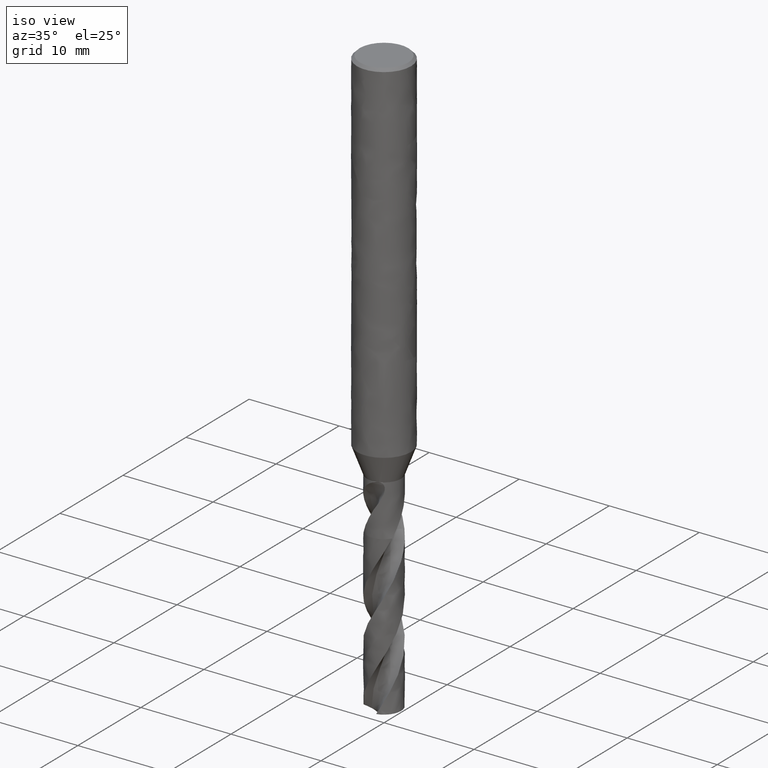
[diagram: clean part render]
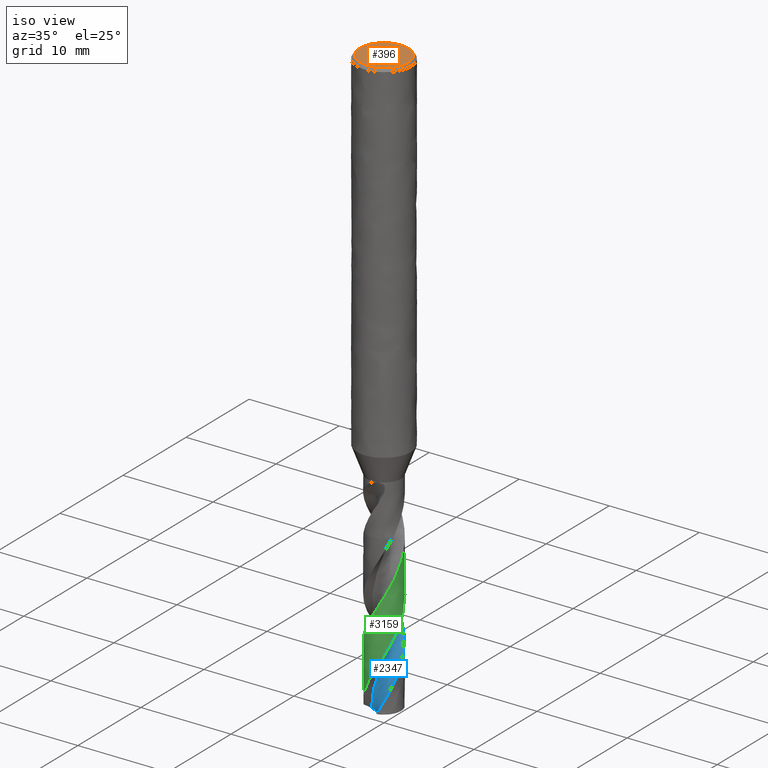
[diagram: same view with three faces highlighted in distinct colors, each labeled with its STEP entity id]
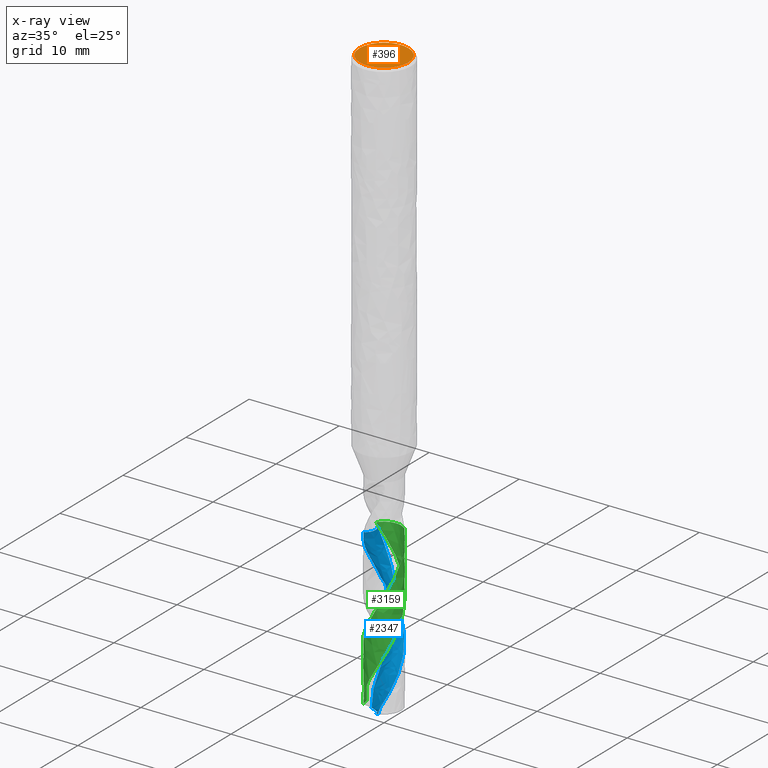
[diagram: x-ray of the same camera — body ghosted, the three highlighted faces saturated]
A machine part, iso view with three faces highlighted in distinct colors.
The next image is the same camera in x-ray (body ghosted, the three faces saturated) — at least one of them is partly hidden behind the body in this view.
Their STEP definitions:

[orange] entity #396 — the highlighted planar face has unit normal (-0, -0, 1).
#356 = VERTEX_POINT('', #357);
#357 = CARTESIAN_POINT('', (-2.7, 1.65327317884893E-16, 0.));
#363 = EDGE_CURVE('', #356, #356, #364, .T.);
#364 = CIRCLE('', #365, 2.7);
#365 = AXIS2_PLACEMENT_3D('', #366, #367, #368);
#366 = CARTESIAN_POINT('', (6.74700668366753E-80, -4.13135006948962E-96, 0.));
#367 = DIRECTION('', (3.74939945665464E-33, 6.12323399573677E-17, -1.));
#368 = DIRECTION('', (-1., 6.12323399573677E-17, 0.));
#396 = ADVANCED_FACE('', (#397), #400, .T.);
#397 = FACE_OUTER_BOUND('', #398, .T.);
#398 = EDGE_LOOP('', (#399));
#399 = ORIENTED_EDGE('', *, *, #363, .F.);
#400 = PLANE('', #401);
#401 = AXIS2_PLACEMENT_3D('', #402, #403, #404);
#402 = CARTESIAN_POINT('', (4.20021428024809, -4.20021428024809, 1.07962619604318E-14));
#403 = DIRECTION('', (-2.63163976207445E-15, -6.12323399573677E-17, 1.));
#404 = DIRECTION('', (0., 1., 6.12323399573677E-17));

[blue] entity #2347 — the highlighted face is a freeform B-spline surface patch.
#1766 = VERTEX_POINT('', #1767);
#1767 = CARTESIAN_POINT('', (-1.31532390499543, -1.37110284987946, -47.7));
#1855 = VERTEX_POINT('', #1856);
#1856 = CARTESIAN_POINT('', (-1.03680474883854, 0.468071399476179, -47.7));
#1862 = EDGE_CURVE('', #1855, #1766, #1863, .T.);
#1863 = B_SPLINE_CURVE_WITH_KNOTS('', 3, (#1864, #1865, #1866, #1867, #1868, #1869, #1870, #1871, #1872, #1873, #1874, #1875, #1876, #1877, #1878, #1879, #1880, #1881, #1882, #1883, #1884, #1885, #1886, #1887, #1888, #1889, #1890, #1891, #1892, #1893, #1894, #1895, #1896, #1897, #1898, #1899, #1900, #1901, #1902, #1903, #1904, #1905, #1906, #1907, #1908, #1909, #1910, #1911, #1912, #1913, #1914, #1915, #1916, #1917, #1918, #1919, #1920, #1921), .UNSPECIFIED., .F., .U., (4, 3, 3, 3, 3, 3, 3, 3, 3, 3, 3, 3, 3, 3, 3, 3, 3, 3, 3, 4), (0., 0.132303581399753, 0.264372738120473, 0.396214417846012, 0.527833783565382, 0.659234370520898, 0.790418192332313, 0.921385803105967, 1.05213631950921, 1.09098565567356, 1.1082916612573, 1.24056923166314, 1.37261322945893, 1.5044303979238, 1.63602571554707, 1.7674025469902, 1.89856274412649, 2.02950670362802, 2.16023338480255, 2.17433280692561), .UNSPECIFIED.);
#1864 = CARTESIAN_POINT('', (-1.03680474883853, 0.468071399476177, -47.7));
#1865 = CARTESIAN_POINT('', (-1.00505188517007, 0.437466319122913, -47.7));
#1866 = CARTESIAN_POINT('', (-0.975027505358526, 0.404961226094456, -47.7));
#1867 = CARTESIAN_POINT('', (-0.947034098406208, 0.370883602031446, -47.7));
#1868 = CARTESIAN_POINT('', (-0.919090292117535, 0.336866359070736, -47.7));
#1869 = CARTESIAN_POINT('', (-0.893076651649562, 0.301168237591229, -47.7));
#1870 = CARTESIAN_POINT('', (-0.869254333091918, 0.264147618105799, -47.7));
#1871 = CARTESIAN_POINT('', (-0.845473046290501, 0.227190763238009, -47.7));
#1872 = CARTESIAN_POINT('', (-0.823796138839925, 0.188792625904096, -47.7));
#1873 = CARTESIAN_POINT('', (-0.804440482369288, 0.149337369141013, -47.7));
#1874 = CARTESIAN_POINT('', (-0.785117463783278, 0.109948642599735, -47.7));
#1875 = CARTESIAN_POINT('', (-0.768043571655274, 0.0693753463800816, -47.7));
#1876 = CARTESIAN_POINT('', (-0.753389051524765, 0.0280220410035664, -47.7));
#1877 = CARTESIAN_POINT('', (-0.738758890254987, -0.0132625265775482, -47.7));
#1878 = CARTESIAN_POINT('', (-0.72649153352077, -0.0554613777215875, -47.7));
#1879 = CARTESIAN_POINT('', (-0.716708895108763, -0.0981551375096322, -47.7));
#1880 = CARTESIAN_POINT('', (-0.706942394638559, -0.140778467482963, -47.7));
#1881 = CARTESIAN_POINT('', (-0.699620121389337, -0.184035916064396, -47.7));
#1882 = CARTESIAN_POINT('', (-0.694814605291495, -0.227499001602393, -47.7));
#1883 = CARTESIAN_POINT('', (-0.690017009420463, -0.270890453316199, -47.7));
#1884 = CARTESIAN_POINT('', (-0.687712052890932, -0.314629776379495, -47.7));
#1885 = CARTESIAN_POINT('', (-0.687922492171072, -0.35828513943242, -47.7));
#1886 = CARTESIAN_POINT('', (-0.68813258262311, -0.401868138535958, -47.7));
#1887 = CARTESIAN_POINT('', (-0.690850398979044, -0.445510527810226, -47.7));
#1888 = CARTESIAN_POINT('', (-0.696049197335571, -0.488782856664879, -47.7));
#1889 = CARTESIAN_POINT('', (-0.697593893835128, -0.501640176823405, -47.7));
#1890 = CARTESIAN_POINT('', (-0.699357940097752, -0.514473036698157, -47.7));
#1891 = CARTESIAN_POINT('', (-0.701339800198807, -0.52727026293959, -47.7));
#1892 = CARTESIAN_POINT('', (-0.702222648797042, -0.532970974731772, -47.7));
#1893 = CARTESIAN_POINT('', (-0.703148792528905, -0.538665149688621, -47.7));
#1894 = CARTESIAN_POINT('', (-0.704118071349971, -0.544351803814904, -47.7));
#1895 = CARTESIAN_POINT('', (-0.711526704548196, -0.587817454390553, -47.7));
#1896 = CARTESIAN_POINT('', (-0.721477803278589, -0.630924821352133, -47.7));
#1897 = CARTESIAN_POINT('', (-0.733871151734377, -0.673239777808257, -47.7));
#1898 = CARTESIAN_POINT('', (-0.746242616308135, -0.71548001551355, -47.7));
#1899 = CARTESIAN_POINT('', (-0.761089104271536, -0.757072068938374, -47.7));
#1900 = CARTESIAN_POINT('', (-0.778261625429507, -0.797598545890836, -47.7));
#1901 = CARTESIAN_POINT('', (-0.795404647090723, -0.838055405187024, -47.7));
#1902 = CARTESIAN_POINT('', (-0.814922887895724, -0.877585341161826, -47.7));
#1903 = CARTESIAN_POINT('', (-0.836621145515227, -0.915793014109366, -47.7));
#1904 = CARTESIAN_POINT('', (-0.858282884547885, -0.953936382805056, -47.7));
#1905 = CARTESIAN_POINT('', (-0.882189314228371, -0.990888785416552, -47.7));
#1906 = CARTESIAN_POINT('', (-0.9081021479618, -1.02628190001923, -47.7));
#1907 = CARTESIAN_POINT('', (-0.933971958917812, -1.06161625184407, -47.7));
#1908 = CARTESIAN_POINT('', (-0.961927232146591, -1.09551361059106, -47.7));
#1909 = CARTESIAN_POINT('', (-0.991690246524656, -1.12763722360256, -47.7));
#1910 = CARTESIAN_POINT('', (-1.02140418307128, -1.15970786626487, -47.7));
#1911 = CARTESIAN_POINT('', (-1.0530180372916, -1.19011656520257, -47.7));
#1912 = CARTESIAN_POINT('', (-1.08621877430993, -1.21856221877759, -47.7));
#1913 = CARTESIAN_POINT('', (-1.11936477483806, -1.24696097534435, -47.7));
#1914 = CARTESIAN_POINT('', (-1.15420154305726, -1.27349667562354, -47.7));
#1915 = CARTESIAN_POINT('', (-1.19038526501669, -1.29790743125936, -47.7));
#1916 = CARTESIAN_POINT('', (-1.22650894649313, -1.32227768156629, -47.7));
#1917 = CARTESIAN_POINT('', (-1.26409364191324, -1.34461002832975, -47.7));
#1918 = CARTESIAN_POINT('', (-1.30276964420723, -1.36468479632315, -47.7));
#1919 = CARTESIAN_POINT('', (-1.30694101364365, -1.36684994444302, -47.7));
#1920 = CARTESIAN_POINT('', (-1.31112592816862, -1.36898937561129, -47.7));
#1921 = CARTESIAN_POINT('', (-1.3153239063296, -1.3711028472294, -47.7));
#2294 = EDGE_CURVE('', #1766, #2295, #2297, .T.);
#2295 = VERTEX_POINT('', #2296);
#2296 = CARTESIAN_POINT('', (-1.63494574529864, -0.967963020951669, -48.5956909922031));
#2297 = B_SPLINE_CURVE_WITH_KNOTS('', 3, (#2298, #2299, #2300, #2301, #2302, #2303, #2304, #2305, #2306, #2307), .UNSPECIFIED., .F., .U., (4, 3, 3, 4), (2.27898584937196, 2.54642865037391, 2.98959854524806, 3.31257766911618), .UNSPECIFIED.);
#2298 = CARTESIAN_POINT('', (-1.31532390499543, -1.37110284987946, -47.7));
#2299 = CARTESIAN_POINT('', (-1.34744710788131, -1.34028647701251, -47.7772382395254));
#2300 = CARTESIAN_POINT('', (-1.37849682783798, -1.30833004222543, -47.8545151716453));
#2301 = CARTESIAN_POINT('', (-1.40837227520699, -1.27533820393975, -47.9317569407624));
#2302 = CARTESIAN_POINT('', (-1.45787780992411, -1.22066860935731, -48.0597515122045));
#2303 = CARTESIAN_POINT('', (-1.50421343752984, -1.16309060923377, -48.1878017124929));
#2304 = CARTESIAN_POINT('', (-1.5470242858669, -1.10304843907146, -48.3158030481302));
#2305 = CARTESIAN_POINT('', (-1.57822453310365, -1.05929012484827, -48.4090895274608));
#2306 = CARTESIAN_POINT('', (-1.60757081210195, -1.01420087259372, -48.5023995841037));
#2307 = CARTESIAN_POINT('', (-1.63494574529865, -0.967963020951637, -48.5956909922032));
#2347 = ADVANCED_FACE('', (#2348), #2580, .T.);
#2348 = FACE_OUTER_BOUND('', #2349, .T.);
#2349 = EDGE_LOOP('', (#2350, #2351, #2411, #2513, #2525, #2579));
#2350 = ORIENTED_EDGE('', *, *, #1862, .F.);
#2351 = ORIENTED_EDGE('', *, *, #2352, .F.);
#2352 = EDGE_CURVE('', #2353, #1855, #2355, .T.);
#2353 = VERTEX_POINT('', #2354);
#2354 = CARTESIAN_POINT('', (-1.00749011122121, -0.527577515513023, -65.5860689628566));
#2355 = (
   BOUNDED_CURVE ()
   B_SPLINE_CURVE (3, (#2356, #2357, #2358, #2359, #2360, #2361, #2362, #2363, #2364, #2365, #2366, #2367, #2368, #2369, #2370, #2371, #2372, #2373, #2374, #2375, #2376, #2377, #2378, #2379, #2380, #2381, #2382, #2383, #2384, #2385, #2386, #2387, #2388, #2389, #2390, #2391, #2392, #2393, #2394, #2395, #2396, #2397, #2398, #2399, #2400, #2401, #2402, #2403, #2404, #2405, #2406, #2407, #2408, #2409, #2410), .UNSPECIFIED., .F., .U.)
   B_SPLINE_CURVE_WITH_KNOTS ((4, 1, 1, 1, 1, 1, 1, 1, 1, 1, 1, 1, 1, 1, 1, 1, 1, 1, 1, 1, 1, 1, 1, 1, 1, 1, 1, 1, 1, 1, 1, 1, 1, 1, 1, 1, 1, 1, 1, 1, 1, 1, 1, 1, 1, 1, 1, 1, 1, 1, 1, 1, 4), (0.463931037143391, 0.69768115942029, 1.04652173913043, 1.39536231884058, 1.74420289855072, 2.09304347826087, 2.44188405797101, 2.79072463768116, 3.1395652173913, 3.48840579710145, 3.83724637681159, 4.18608695652174, 4.53492753623188, 4.88376811594203, 5.23260869565217, 5.58144927536232, 5.93028985507246, 6.27913043478261, 6.62797101449275, 6.9768115942029, 7.32565217391304, 7.67449275362319, 8.02333333333333, 8.37217391304348, 8.72101449275362, 9.06985507246377, 9.41869565217391, 9.76753623188406, 10.1163768115942, 10.4652173913043, 10.8140579710145, 11.1628985507246, 11.5117391304348, 11.8605797101449, 12.2094202898551, 12.5582608695652, 12.9071014492754, 13.2559420289855, 13.6047826086957, 13.9536231884058, 14.3024637681159, 14.6513043478261, 15.0001449275362, 15.3489855072464, 15.6978260869565, 16.0466666666667, 16.3955072463768, 16.744347826087, 17.0931884057971, 17.4420289855072, 17.7908695652174, 18.1397101449275, 18.35), .UNSPECIFIED.)
   CURVE ()
   GEOMETRIC_REPRESENTATION_ITEM ()
   RATIONAL_B_SPLINE_CURVE ((1., 1., 1., 1., 1., 1., 1., 1., 1., 1., 1., 1., 1., 1., 1., 1., 1., 1., 1., 1., 1., 1., 1., 1., 1., 1., 1., 1., 1., 1., 1., 1., 1., 1., 1., 1., 1., 1., 1., 1., 1., 1., 1., 1., 1., 1., 1., 1., 1., 1., 1., 1., 1., 1., 1.))
   REPRESENTATION_ITEM ('')
);
#2356 = CARTESIAN_POINT('', (-1.00749011122121, -0.527577515513024, -65.5860689628566));
#2357 = CARTESIAN_POINT('', (-0.994530518810611, -0.55086005212044, -65.508152255431));
#2358 = CARTESIAN_POINT('', (-0.960241495446924, -0.60771304692657, -65.3139553547686));
#2359 = CARTESIAN_POINT('', (-0.897831748029975, -0.693383614316464, -65.0034782608696));
#2360 = CARTESIAN_POINT('', (-0.818306733598377, -0.781623588657765, -64.6546376811594));
#2361 = CARTESIAN_POINT('', (-0.730272057134517, -0.860945035983277, -64.3057971014493));
#2362 = CARTESIAN_POINT('', (-0.634708346112866, -0.930545074960913, -63.9569565217391));
#2363 = CARTESIAN_POINT('', (-0.532669570029505, -0.989726177857417, -63.608115942029));
#2364 = CARTESIAN_POINT('', (-0.425272573553881, -1.0379032140955, -63.2592753623188));
#2365 = CARTESIAN_POINT('', (-0.313685126746378, -1.07460875922933, -62.9104347826087));
#2366 = CARTESIAN_POINT('', (-0.19911377548442, -1.09949734899814, -62.5615942028986));
#2367 = CARTESIAN_POINT('', (-0.0827913017102373, -1.11234845036188, -62.2127536231884));
#2368 = CARTESIAN_POINT('', (0.0340359989522357, -1.1130681797984, -61.8639130434783));
#2369 = CARTESIAN_POINT('', (0.150121119641486, -1.10168974520489, -61.5150724637681));
#2370 = CARTESIAN_POINT('', (0.264229093869967, -1.07837261751092, -61.166231884058));
#2371 = CARTESIAN_POINT('', (0.375149574244241, -1.04340044533075, -60.8173913043478));
#2372 = CARTESIAN_POINT('', (0.481709116528825, -0.99717773899686, -60.4685507246377));
#2373 = CARTESIAN_POINT('', (0.582783051251291, -0.940225361404893, -60.1197101449275));
#2374 = CARTESIAN_POINT('', (0.677306829358927, -0.873174874208331, -59.7708695652174));
#2375 = CARTESIAN_POINT('', (0.764286733932492, -0.796761798391113, -59.4220289855072));
#2376 = CARTESIAN_POINT('', (0.842809856350943, -0.71181785817798, -59.0731884057971));
#2377 = CARTESIAN_POINT('', (0.912053242584311, -0.619262286495798, -58.724347826087));
#2378 = CARTESIAN_POINT('', (0.971292123385839, -0.520092278710039, -58.3755072463768));
#2379 = CARTESIAN_POINT('', (1.01990715099005, -0.415372689057964, -58.0266666666667));
#2380 = CARTESIAN_POINT('', (1.05739057442074, -0.306225071023306, -57.6778260869565));
#2381 = CARTESIAN_POINT('', (1.08335129558856, -0.193816168792101, -57.3289855072464));
#2382 = CARTESIAN_POINT('', (1.0975187589247, -0.0793459718494466, -56.9801449275362));
#2383 = CARTESIAN_POINT('', (1.09974563826373, 0.0359645513164656, -56.6313043478261));
#2384 = CARTESIAN_POINT('', (1.09000929596123, 0.150885921573675, -56.2824637681159));
#2385 = CARTESIAN_POINT('', (1.06841200071542, 0.264192698943266, -55.9336231884058));
#2386 = CARTESIAN_POINT('', (1.0351799021574, 0.374675992490928, -55.5847826086957));
#2387 = CARTESIAN_POINT('', (0.990660771886157, 0.481155809339336, -55.2359420289855));
#2388 = CARTESIAN_POINT('', (0.935320532151891, 0.58249312327836, -54.8871014492754));
#2389 = CARTESIAN_POINT('', (0.869738604738439, 0.677601545972153, -54.5382608695652));
#2390 = CARTESIAN_POINT('', (0.794602123665303, 0.765458487334784, -54.1894202898551));
#2391 = CARTESIAN_POINT('', (0.710699066028604, 0.845115696241837, -53.8405797101449));
#2392 = CARTESIAN_POINT('', (0.618910365535618, 0.915709078327314, -53.4917391304348));
#2393 = CARTESIAN_POINT('', (0.520201082971719, 0.976467694139445, -53.1428985507246));
#2394 = CARTESIAN_POINT('', (0.415610716886205, 1.02672184834381, -52.7940579710145));
#2395 = CARTESIAN_POINT('', (0.306242746116399, 1.06591018890798, -52.4452173913043));
#2396 = CARTESIAN_POINT('', (0.193253503306768, 1.09358574421287, -52.0963768115942));
#2397 = CARTESIAN_POINT('', (0.077840485274552, 1.10942083573956, -51.7475362318841));
#2398 = CARTESIAN_POINT('', (-0.0387697882192768, 1.11321081429591, -51.3986956521739));
#2399 = CARTESIAN_POINT('', (-0.155334250765608, 1.10487657859664, -51.0498550724638));
#2400 = CARTESIAN_POINT('', (-0.270605981096687, 1.08446584628104, -50.7010144927536));
#2401 = CARTESIAN_POINT('', (-0.383346985472262, 1.05215315913526, -50.3521739130435));
#2402 = CARTESIAN_POINT('', (-0.492340954035889, 1.00823861596467, -50.0033333333333));
#2403 = CARTESIAN_POINT('', (-0.596405837279938, 0.953145339323763, -49.6544927536232));
#2404 = CARTESIAN_POINT('', (-0.694406226688665, 0.887415691615448, -49.305652173913));
#2405 = CARTESIAN_POINT('', (-0.785265013229717, 0.811706278373114, -48.9568115942029));
#2406 = CARTESIAN_POINT('', (-0.867975711980682, 0.726781749926618, -48.6079710144928));
#2407 = CARTESIAN_POINT('', (-0.941609710900488, 0.633507567680428, -48.2591304347826));
#2408 = CARTESIAN_POINT('', (-0.996902063920938, 0.546168738586327, -47.9564734299517));
#2409 = CARTESIAN_POINT('', (-1.02638227807305, 0.489666161955639, -47.7700966183575));
#2410 = CARTESIAN_POINT('', (-1.03680474883854, 0.468071399476179, -47.7));
#2411 = ORIENTED_EDGE('', *, *, #2412, .T.);
#2412 = EDGE_CURVE('', #2353, #2413, #2415, .T.);
#2413 = VERTEX_POINT('', #2414);
#2414 = CARTESIAN_POINT('', (0.422851228933491, -1.8523490055034, -65.3084565548942));
#2415 = B_SPLINE_CURVE_WITH_KNOTS('', 3, (#2416, #2417, #2418, #2419, #2420, #2421, #2422, #2423, #2424, #2425, #2426, #2427, #2428, #2429, #2430, #2431, #2432, #2433, #2434, #2435, #2436, #2437, #2438, #2439, #2440, #2441, #2442, #2443, #2444, #2445, #2446, #2447, #2448, #2449, #2450, #2451, #2452, #2453, #2454, #2455, #2456, #2457, #2458, #2459, #2460, #2461, #2462, #2463, #2464, #2465, #2466, #2467, #2468, #2469, #2470, #2471, #2472, #2473, #2474, #2475, #2476, #2477, #2478, #2479, #2480, #2481, #2482, #2483, #2484, #2485, #2486, #2487, #2488, #2489, #2490, #2491, #2492, #2493, #2494, #2495, #2496, #2497, #2498, #2499, #2500, #2501, #2502, #2503, #2504, #2505, #2506, #2507, #2508, #2509, #2510, #2511, #2512), .UNSPECIFIED., .F., .U., (4, 3, 3, 3, 3, 3, 3, 3, 3, 3, 3, 3, 3, 3, 3, 3, 3, 3, 3, 3, 3, 3, 3, 3, 3, 3, 3, 3, 3, 3, 3, 3, 4), (0., 0.0877175158024113, 0.175310559567916, 0.26272580529695, 0.320938762553489, 0.379079855914134, 0.437152667130127, 0.495171359450299, 0.553161738727887, 0.611158525015904, 0.669198165021556, 0.72730926817945, 0.785505089131302, 0.84378177747551, 0.902122493633081, 0.960504257314285, 1.0189040523398, 1.07730248164063, 1.10325368208701, 1.12057146518719, 1.15962297835222, 1.17695275251098, 1.26550634453075, 1.35376557018044, 1.44178904920741, 1.52962339838551, 1.61730419215751, 1.70485799853629, 1.79230439666328, 1.87965764549199, 2.01032372406933, 2.14074383441694, 2.26689305756067), .UNSPECIFIED.);
#2416 = CARTESIAN_POINT('', (-1.00749011122121, -0.527577515513024, -65.5860689628566));
#2417 = CARTESIAN_POINT('', (-0.980806429740565, -0.520685111203622, -65.5958365153069));
#2418 = CARTESIAN_POINT('', (-0.953706998617095, -0.515106397028984, -65.6054991489786));
#2419 = CARTESIAN_POINT('', (-0.926356646583432, -0.510919322977384, -65.6149519702461));
#2420 = CARTESIAN_POINT('', (-0.899045104974308, -0.506738190425963, -65.6243913778652));
#2421 = CARTESIAN_POINT('', (-0.871418482391575, -0.503935360705191, -65.6336442738326));
#2422 = CARTESIAN_POINT('', (-0.84365544855155, -0.502568559134153, -65.6425801787192));
#2423 = CARTESIAN_POINT('', (-0.815948768648906, -0.501204531923099, -65.651497945335));
#2424 = CARTESIAN_POINT('', (-0.788035876719096, -0.501267987945838, -65.6601227206127));
#2425 = CARTESIAN_POINT('', (-0.760108390051412, -0.502788582741644, -65.6682952675087));
#2426 = CARTESIAN_POINT('', (-0.741510471872381, -0.503801201525867, -65.673737660528));
#2427 = CARTESIAN_POINT('', (-0.722878480836116, -0.505460530923075, -65.6789871163598));
#2428 = CARTESIAN_POINT('', (-0.704272363767815, -0.507766026604972, -65.6839895853976));
#2429 = CARTESIAN_POINT('', (-0.685689215951086, -0.510068676152444, -65.6889858788873));
#2430 = CARTESIAN_POINT('', (-0.667108359744325, -0.513018963866165, -65.6937419589967));
#2431 = CARTESIAN_POINT('', (-0.648592077697126, -0.516606780135596, -65.6981999181617));
#2432 = CARTESIAN_POINT('', (-0.630097541567936, -0.520190382796796, -65.7026526418042));
#2433 = CARTESIAN_POINT('', (-0.611643023842139, -0.524414897950323, -65.7068135428163));
#2434 = CARTESIAN_POINT('', (-0.5932926815235, -0.529258685398462, -65.7106239866814));
#2435 = CARTESIAN_POINT('', (-0.574959440155261, -0.53409795885076, -65.7144308795385));
#2436 = CARTESIAN_POINT('', (-0.556705157260217, -0.53956206857006, -65.7178927744746));
#2437 = CARTESIAN_POINT('', (-0.538594764505761, -0.545616277974272, -65.7209552836758));
#2438 = CARTESIAN_POINT('', (-0.520493209598225, -0.551667532932568, -65.7240162983767));
#2439 = CARTESIAN_POINT('', (-0.502510214078947, -0.558316751120366, -65.7266821392621));
#2440 = CARTESIAN_POINT('', (-0.484709403552006, -0.565515766617594, -65.7289090447595));
#2441 = CARTESIAN_POINT('', (-0.466906626319897, -0.57271557749102, -65.7311361962944));
#2442 = CARTESIAN_POINT('', (-0.449261366862969, -0.580475174296748, -65.7329270499847));
#2443 = CARTESIAN_POINT('', (-0.431832854969383, -0.588734736749846, -65.7342548146503));
#2444 = CARTESIAN_POINT('', (-0.41439146518074, -0.597000402178295, -65.7355835603987));
#2445 = CARTESIAN_POINT('', (-0.397143708530051, -0.605777600739891, -65.7364501868705));
#2446 = CARTESIAN_POINT('', (-0.380140920683033, -0.614999042938489, -65.7368490317095));
#2447 = CARTESIAN_POINT('', (-0.363117197612841, -0.624231839331009, -65.7372483676389));
#2448 = CARTESIAN_POINT('', (-0.346317675492736, -0.633921185130408, -65.7371794363616));
#2449 = CARTESIAN_POINT('', (-0.329783031242696, -0.64399812502774, -65.7366579314134));
#2450 = CARTESIAN_POINT('', (-0.313224281812947, -0.654089755682459, -65.7361356661845));
#2451 = CARTESIAN_POINT('', (-0.296912491807309, -0.664581111188675, -65.735159324637));
#2452 = CARTESIAN_POINT('', (-0.280876686595126, -0.675407316104593, -65.7337621162655));
#2453 = CARTESIAN_POINT('', (-0.264818598446976, -0.686248564832014, -65.7323629663698));
#2454 = CARTESIAN_POINT('', (-0.249021554224342, -0.697435877970573, -65.7305409154562));
#2455 = CARTESIAN_POINT('', (-0.233503943404198, -0.708912546529326, -65.7283403876556));
#2456 = CARTESIAN_POINT('', (-0.217969283593838, -0.720401824349404, -65.7261374421647));
#2457 = CARTESIAN_POINT('', (-0.202701895052333, -0.732190330394783, -65.7235538359481));
#2458 = CARTESIAN_POINT('', (-0.187711920344982, -0.744231288605751, -65.7206386836843));
#2459 = CARTESIAN_POINT('', (-0.172711398949459, -0.756280718627647, -65.7177214803695));
#2460 = CARTESIAN_POINT('', (-0.157978507112385, -0.768591020100148, -65.71447062251));
#2461 = CARTESIAN_POINT('', (-0.143517937128879, -0.781125143035417, -65.7109347832651));
#2462 = CARTESIAN_POINT('', (-0.1290529009645, -0.793663137163882, -65.707397851968));
#2463 = CARTESIAN_POINT('', (-0.114852309458639, -0.806432031231277, -65.7035739986718));
#2464 = CARTESIAN_POINT('', (-0.100917871939813, -0.819403138836628, -65.6995082552556));
#2465 = CARTESIAN_POINT('', (-0.0869837602886589, -0.832373943102527, -65.6954426069199));
#2466 = CARTESIAN_POINT('', (-0.0733093866778711, -0.845552924076026, -65.691133306667));
#2467 = CARTESIAN_POINT('', (-0.0598952983545941, -0.858917997296021, -65.6866202390318));
#2468 = CARTESIAN_POINT('', (-0.0539343213377381, -0.864857192891949, -65.6846147138108));
#2469 = CARTESIAN_POINT('', (-0.0480239780512495, -0.870833955250535, -65.6825686316561));
#2470 = CARTESIAN_POINT('', (-0.0421643086049244, -0.876846673274523, -65.6804851445123));
#2471 = CARTESIAN_POINT('', (-0.0382540276635885, -0.880859086757945, -65.6790947896222));
#2472 = CARTESIAN_POINT('', (-0.0343661581420359, -0.884887673612547, -65.677687718753));
#2473 = CARTESIAN_POINT('', (-0.0305007154083498, -0.888931996379075, -65.6762648162421));
#2474 = CARTESIAN_POINT('', (-0.0217841616248819, -0.898051923730459, -65.673056178288));
#2475 = CARTESIAN_POINT('', (-0.0131806981417733, -0.907252818523601, -65.6697667518389));
#2476 = CARTESIAN_POINT('', (-0.00469059165160047, -0.916530192144325, -65.6664059226611));
#2477 = CARTESIAN_POINT('', (-0.000922962278655595, -0.920647184716524, -65.6649144974661));
#2478 = CARTESIAN_POINT('', (0.00282251544821166, -0.924779434504985, -65.6634089301124));
#2479 = CARTESIAN_POINT('', (0.00654580777090705, -0.928926588506208, -65.6618899778374));
#2480 = CARTESIAN_POINT('', (0.0255714976785658, -0.950118173584187, -65.6541282679142));
#2481 = CARTESIAN_POINT('', (0.0440258324711428, -0.971706692021515, -65.6460156582589));
#2482 = CARTESIAN_POINT('', (0.0619010398403509, -0.993652378014284, -65.6376390167286));
#2483 = CARTESIAN_POINT('', (0.0797168271477901, -1.01552511302023, -65.6292902205009));
#2484 = CARTESIAN_POINT('', (0.0969682977740706, -1.03776640467109, -65.6206736684171));
#2485 = CARTESIAN_POINT('', (0.113641729699764, -1.06034442953954, -65.6118560341916));
#2486 = CARTESIAN_POINT('', (0.130270625711656, -1.08286214690959, -65.6030619524896));
#2487 = CARTESIAN_POINT('', (0.146333940473646, -1.1057277311066, -65.5940625980669));
#2488 = CARTESIAN_POINT('', (0.161812181729453, -1.12891298358133, -65.5849099063086));
#2489 = CARTESIAN_POINT('', (0.177257165978586, -1.15204841953728, -65.5757768802944));
#2490 = CARTESIAN_POINT('', (0.192127955725978, -1.17551487587134, -65.566485979248));
#2491 = CARTESIAN_POINT('', (0.206399833508558, -1.19928509865289, -65.5570786356814));
#2492 = CARTESIAN_POINT('', (0.220646760642454, -1.22301376541169, -65.5476877383967));
#2493 = CARTESIAN_POINT('', (0.234304552074391, -1.24705809565512, -65.5381755468401));
#2494 = CARTESIAN_POINT('', (0.247343835531639, -1.27139000502971, -65.5285761310334));
#2495 = CARTESIAN_POINT('', (0.260364234298814, -1.29568667469431, -65.5189906179839));
#2496 = CARTESIAN_POINT('', (0.27277508514398, -1.32028361616879, -65.5093127029998));
#2497 = CARTESIAN_POINT('', (0.284542858971692, -1.34515061103912, -65.499571395771));
#2498 = CARTESIAN_POINT('', (0.296296196465145, -1.36998709986343, -65.489842038871));
#2499 = CARTESIAN_POINT('', (0.307414763404887, -1.39510734731174, -65.4800437506707));
#2500 = CARTESIAN_POINT('', (0.317861300158219, -1.42047791851296, -65.4702021810892));
#2501 = CARTESIAN_POINT('', (0.328296709093953, -1.44582146457702, -65.4603710949046));
#2502 = CARTESIAN_POINT('', (0.33806781604488, -1.47143025918326, -65.4504907781318));
#2503 = CARTESIAN_POINT('', (0.347134023896992, -1.49726664552536, -65.440584802244));
#2504 = CARTESIAN_POINT('', (0.360695578200777, -1.53591362584031, -65.4257670932166));
#2505 = CARTESIAN_POINT('', (0.37269636925414, -1.57511903687956, -65.4108737487078));
#2506 = CARTESIAN_POINT('', (0.382988017314516, -1.61473374647206, -65.3959799208746));
#2507 = CARTESIAN_POINT('', (0.393260292187284, -1.65427388460656, -65.381114129457));
#2508 = CARTESIAN_POINT('', (0.401846058208059, -1.69428665529345, -65.3662233700835));
#2509 = CARTESIAN_POINT('', (0.408586577227307, -1.73458875017597, -65.3513828693958));
#2510 = CARTESIAN_POINT('', (0.415106363444305, -1.77357106622328, -65.3370283528428));
#2511 = CARTESIAN_POINT('', (0.419910641284464, -1.81289285881624, -65.3226954507459));
#2512 = CARTESIAN_POINT('', (0.422851228933493, -1.8523490055034, -65.3084565548942));
#2513 = ORIENTED_EDGE('', *, *, #2514, .F.);
#2514 = EDGE_CURVE('', #2515, #2413, #2517, .T.);
#2515 = VERTEX_POINT('', #2516);
#2516 = CARTESIAN_POINT('', (0.73695157488532, -1.75125737008414, -64.7249650017639));
#2517 = B_SPLINE_CURVE_WITH_KNOTS('', 3, (#2518, #2519, #2520, #2521, #2522, #2523, #2524), .UNSPECIFIED., .F., .U., (4, 3, 4), (0., 0.442658993369806, 0.670466831649243), .UNSPECIFIED.);
#2518 = CARTESIAN_POINT('', (0.736951574885352, -1.75125737008413, -64.7249650017638));
#2519 = CARTESIAN_POINT('', (0.669930408297773, -1.77946073705411, -64.8533574488843));
#2520 = CARTESIAN_POINT('', (0.601268810413657, -1.80381841374718, -64.9818059944837));
#2521 = CARTESIAN_POINT('', (0.531472497146624, -1.82415377223954, -65.1102070653753));
#2522 = CARTESIAN_POINT('', (0.495552867175492, -1.83461906070802, -65.1762867583911));
#2523 = CARTESIAN_POINT('', (0.459322245271478, -1.84402346100117, -65.2423746497683));
#2524 = CARTESIAN_POINT('', (0.422851228933491, -1.8523490055034, -65.3084565548942));
#2525 = ORIENTED_EDGE('', *, *, #2526, .T.);
#2526 = EDGE_CURVE('', #2515, #2295, #2527, .T.);
#2527 = (
   BOUNDED_CURVE ()
   B_SPLINE_CURVE (3, (#2528, #2529, #2530, #2531, #2532, #2533, #2534, #2535, #2536, #2537, #2538, #2539, #2540, #2541, #2542, #2543, #2544, #2545, #2546, #2547, #2548, #2549, #2550, #2551, #2552, #2553, #2554, #2555, #2556, #2557, #2558, #2559, #2560, #2561, #2562, #2563, #2564, #2565, #2566, #2567, #2568, #2569, #2570, #2571, #2572, #2573, #2574, #2575, #2576, #2577, #2578), .UNSPECIFIED., .F., .U.)
   B_SPLINE_CURVE_WITH_KNOTS ((4, 1, 1, 1, 1, 1, 1, 1, 1, 1, 1, 1, 1, 1, 1, 1, 1, 1, 1, 1, 1, 1, 1, 1, 1, 1, 1, 1, 1, 1, 1, 1, 1, 1, 1, 1, 1, 1, 1, 1, 1, 1, 1, 1, 1, 1, 1, 1, 4), (1.32503499823611, 1.39536231884058, 1.74420289855072, 2.09304347826087, 2.44188405797101, 2.79072463768116, 3.1395652173913, 3.48840579710145, 3.83724637681159, 4.18608695652174, 4.53492753623188, 4.88376811594203, 5.23260869565217, 5.58144927536232, 5.93028985507246, 6.27913043478261, 6.62797101449275, 6.9768115942029, 7.32565217391304, 7.67449275362319, 8.02333333333333, 8.37217391304348, 8.72101449275362, 9.06985507246377, 9.41869565217391, 9.76753623188406, 10.1163768115942, 10.4652173913043, 10.8140579710145, 11.1628985507246, 11.5117391304348, 11.8605797101449, 12.2094202898551, 12.5582608695652, 12.9071014492754, 13.2559420289855, 13.6047826086957, 13.9536231884058, 14.3024637681159, 14.6513043478261, 15.0001449275362, 15.3489855072464, 15.6978260869565, 16.0466666666667, 16.3955072463768, 16.744347826087, 17.0931884057971, 17.4420289855072, 17.4543090077968), .UNSPECIFIED.)
   CURVE ()
   GEOMETRIC_REPRESENTATION_ITEM ()
   RATIONAL_B_SPLINE_CURVE ((1., 1., 1., 1., 1., 1., 1., 1., 1., 1., 1., 1., 1., 1., 1., 1., 1., 1., 1., 1., 1., 1., 1., 1., 1., 1., 1., 1., 1., 1., 1., 1., 1., 1., 1., 1., 1., 1., 1., 1., 1., 1., 1., 1., 1., 1., 1., 1., 1., 1., 1.))
   REPRESENTATION_ITEM ('')
);
#2528 = CARTESIAN_POINT('', (0.736951574885323, -1.75125737008414, -64.7249650017639));
#2529 = CARTESIAN_POINT('', (0.749172317819771, -1.7457778650442, -64.7015225615624));
#2530 = CARTESIAN_POINT('', (0.821650747133885, -1.71236375990679, -64.5617999281242));
#2531 = CARTESIAN_POINT('', (0.950342210294233, -1.6429780618088, -64.3057971014493));
#2532 = CARTESIAN_POINT('', (1.11456669276201, -1.53101337436689, -63.9569565217391));
#2533 = CARTESIAN_POINT('', (1.26595482419113, -1.4029064455608, -63.608115942029));
#2534 = CARTESIAN_POINT('', (1.40294877234663, -1.26009484600086, -63.2592753623188));
#2535 = CARTESIAN_POINT('', (1.52414828585063, -1.1041633197386, -62.9104347826087));
#2536 = CARTESIAN_POINT('', (1.62832429814451, -0.936826952147419, -62.5615942028986));
#2537 = CARTESIAN_POINT('', (1.71443072056131, -0.75991299470809, -62.2127536231884));
#2538 = CARTESIAN_POINT('', (1.78161435512185, -0.575341692436209, -61.8639130434783));
#2539 = CARTESIAN_POINT('', (1.82922283161302, -0.385106262981468, -61.5150724637681));
#2540 = CARTESIAN_POINT('', (1.85681050462202, -0.191252238101349, -61.166231884058));
#2541 = CARTESIAN_POINT('', (1.86414226262765, 0.00414363169498366, -60.8173913043478));
#2542 = CARTESIAN_POINT('', (1.85119522202161, 0.198994701645013, -60.4685507246377));
#2543 = CARTESIAN_POINT('', (1.81815829872957, 0.391225778691461, -60.1197101449275));
#2544 = CARTESIAN_POINT('', (1.76542967012765, 0.578794281768173, -59.7708695652174));
#2545 = CARTESIAN_POINT('', (1.69361215966589, 0.759711012051153, -59.4220289855072));
#2546 = CARTESIAN_POINT('', (1.60350659594651, 0.93206033331305, -59.0731884057971));
#2547 = CARTESIAN_POINT('', (1.49610321677383, 1.09401956882033, -58.724347826087));
#2548 = CARTESIAN_POINT('', (1.37257120674391, 1.24387742921652, -58.3755072463768));
#2549 = CARTESIAN_POINT('', (1.23424647412455, 1.38005129547323, -58.0266666666667));
#2550 = CARTESIAN_POINT('', (1.08261778894878, 1.50110319217092, -57.6778260869565));
#2551 = CARTESIAN_POINT('', (0.919311419274422, 1.60575429899235, -57.3289855072464));
#2552 = CARTESIAN_POINT('', (0.746074416326294, 1.69289786226108, -56.9801449275362));
#2553 = CARTESIAN_POINT('', (0.564756711622468, 1.76161038351263, -56.6313043478261));
#2554 = CARTESIAN_POINT('', (0.377292200091886, 1.81116097831662, -56.2824637681159));
#2555 = CARTESIAN_POINT('', (0.185678992526637, 1.84101881573366, -55.9336231884058));
#2556 = CARTESIAN_POINT('', (-0.00804097159731666, 1.85085856674674, -55.5847826086957));
#2557 = CARTESIAN_POINT('', (-0.201802753917342, 1.84056380859906, -55.2359420289855));
#2558 = CARTESIAN_POINT('', (-0.39353948836611, 1.81022835104322, -54.8871014492754));
#2559 = CARTESIAN_POINT('', (-0.581203490083911, 1.76015546989856, -54.5382608695652));
#2560 = CARTESIAN_POINT('', (-0.762787197805551, 1.69085505286067, -54.1894202898551));
#2561 = CARTESIAN_POINT('', (-0.936343746694669, 1.60303868204465, -53.8405797101449));
#2562 = CARTESIAN_POINT('', (-1.10000697165017, 1.49761269710582, -53.4917391304348));
#2563 = CARTESIAN_POINT('', (-1.25201064596518, 1.37566930180271, -53.1428985507246));
#2564 = CARTESIAN_POINT('', (-1.39070676684415, 1.23847579538493, -52.7940579710145));
#2565 = CARTESIAN_POINT('', (-1.51458270762931, 1.08746202804343, -52.4452173913043));
#2566 = CARTESIAN_POINT('', (-1.62227706659389, 0.924206196689244, -52.0963768115942));
#2567 = CARTESIAN_POINT('', (-1.71259405373925, 0.750419113412393, -51.7475362318841));
#2568 = CARTESIAN_POINT('', (-1.7845162701397, 0.567927093840758, -51.3986956521739));
#2569 = CARTESIAN_POINT('', (-1.83721574874771, 0.378653626620216, -51.0498550724638));
#2570 = CARTESIAN_POINT('', (-1.87006314169644, 0.184599996429261, -50.7010144927536));
#2571 = CARTESIAN_POINT('', (-1.88263495462422, -0.0121749520236048, -50.3521739130435));
#2572 = CARTESIAN_POINT('', (-1.87471875171228, -0.209575728064839, -50.0033333333333));
#2573 = CARTESIAN_POINT('', (-1.84631625428456, -0.405491540057862, -49.6544927536232));
#2574 = CARTESIAN_POINT('', (-1.79764434852411, -0.597818037349426, -49.305652173913));
#2575 = CARTESIAN_POINT('', (-1.72913376463691, -0.784478594421249, -48.9568115942029));
#2576 = CARTESIAN_POINT('', (-1.66963290326302, -0.90589112660138, -48.7201578669663));
#2577 = CARTESIAN_POINT('', (-1.63609015970473, -0.965923604048088, -48.5997843329664));
#2578 = CARTESIAN_POINT('', (-1.63494574529864, -0.96796302095166, -48.5956909922032));
#2579 = ORIENTED_EDGE('', *, *, #2294, .F.);
#2580 = (
   BOUNDED_SURFACE ()
   B_SPLINE_SURFACE (3, 2, ((#2581, #2582, #2583, #2584, #2585), (#2586, #2587, #2588, #2589, #2590), (#2591, #2592, #2593, #2594, #2595), (#2596, #2597, #2598, #2599, #2600), (#2601, #2602, #2603, #2604, #2605), (#2606, #2607, #2608, #2609, #2610), (#2611, #2612, #2613, #2614, #2615), (#2616, #2617, #2618, #2619, #2620), (#2621, #2622, #2623, #2624, #2625), (#2626, #2627, #2628, #2629, #2630), (#2631, #2632, #2633, #2634, #2635), (#2636, #2637, #2638, #2639, #2640), (#2641, #2642, #2643, #2644, #2645), (#2646, #2647, #2648, #2649, #2650), (#2651, #2652, #2653, #2654, #2655), (#2656, #2657, #2658, #2659, #2660), (#2661, #2662, #2663, #2664, #2665), (#2666, #2667, #2668, #2669, #2670), (#2671, #2672, #2673, #2674, #2675), (#2676, #2677, #2678, #2679, #2680), (#2681, #2682, #2683, #2684, #2685), (#2686, #2687, #2688, #2689, #2690), (#2691, #2692, #2693, #2694, #2695), (#2696, #2697, #2698, #2699, #2700), (#2701, #2702, #2703, #2704, #2705), (#2706, #2707, #2708, #2709, #2710), (#2711, #2712, #2713, #2714, #2715), (#2716, #2717, #2718, #2719, #2720), (#2721, #2722, #2723, #2724, #2725), (#2726, #2727, #2728, #2729, #2730), (#2731, #2732, #2733, #2734, #2735), (#2736, #2737, #2738, #2739, #2740), (#2741, #2742, #2743, #2744, #2745), (#2746, #2747, #2748, #2749, #2750), (#2751, #2752, #2753, #2754, #2755), (#2756, #2757, #2758, #2759, #2760), (#2761, #2762, #2763, #2764, #2765), (#2766, #2767, #2768, #2769, #2770), (#2771, #2772, #2773, #2774, #2775), (#2776, #2777, #2778, #2779, #2780), (#2781, #2782, #2783, #2784, #2785), (#2786, #2787, #2788, #2789, #2790), (#2791, #2792, #2793, #2794, #2795), (#2796, #2797, #2798, #2799, #2800), (#2801, #2802, #2803, #2804, #2805), (#2806, #2807, #2808, #2809, #2810), (#2811, #2812, #2813, #2814, #2815), (#2816, #2817, #2818, #2819, #2820), (#2821, #2822, #2823, #2824, #2825), (#2826, #2827, #2828, #2829, #2830), (#2831, #2832, #2833, #2834, #2835), (#2836, #2837, #2838, #2839, #2840), (#2841, #2842, #2843, #2844, #2845), (#2846, #2847, #2848, #2849, #2850), (#2851, #2852, #2853, #2854, #2855)), .UNSPECIFIED., .F., .F., .U.)
   B_SPLINE_SURFACE_WITH_KNOTS ((4, 1, 1, 1, 1, 1, 1, 1, 1, 1, 1, 1, 1, 1, 1, 1, 1, 1, 1, 1, 1, 1, 1, 1, 1, 1, 1, 1, 1, 1, 1, 1, 1, 1, 1, 1, 1, 1, 1, 1, 1, 1, 1, 1, 1, 1, 1, 1, 1, 1, 1, 1, 4), (3, 2, 3), (0.31275163236108, 0.69768115942029, 1.04652173913043, 1.39536231884058, 1.74420289855072, 2.09304347826087, 2.44188405797101, 2.79072463768116, 3.1395652173913, 3.48840579710145, 3.83724637681159, 4.18608695652174, 4.53492753623188, 4.88376811594203, 5.23260869565217, 5.58144927536232, 5.93028985507246, 6.27913043478261, 6.62797101449275, 6.9768115942029, 7.32565217391304, 7.67449275362319, 8.02333333333333, 8.37217391304348, 8.72101449275362, 9.06985507246377, 9.41869565217391, 9.76753623188406, 10.1163768115942, 10.4652173913043, 10.8140579710145, 11.1628985507246, 11.5117391304348, 11.8605797101449, 12.2094202898551, 12.5582608695652, 12.9071014492754, 13.2559420289855, 13.6047826086957, 13.9536231884058, 14.3024637681159, 14.6513043478261, 15.0001449275362, 15.3489855072464, 15.6978260869565, 16.0466666666667, 16.3955072463768, 16.744347826087, 17.0931884057971, 17.4420289855072, 17.7908695652174, 18.1397101449275, 18.35), (0., 0.5, 1.), .UNSPECIFIED.)
   GEOMETRIC_REPRESENTATION_ITEM ()
   RATIONAL_B_SPLINE_SURFACE (((1., 0.887010833178222, 1., 0.887010833178222, 1.), (1., 0.887010833178222, 1., 0.887010833178222, 1.), (1., 0.887010833178222, 1., 0.887010833178222, 1.), (1., 0.887010833178222, 1., 0.887010833178222, 1.), (1., 0.887010833178222, 1., 0.887010833178222, 1.), (1., 0.887010833178222, 1., 0.887010833178222, 1.), (1., 0.887010833178221, 1., 0.887010833178221, 1.), (1., 0.887010833178222, 1., 0.887010833178222, 1.), (1., 0.887010833178221, 1., 0.887010833178221, 1.), (1., 0.887010833178222, 1., 0.887010833178222, 1.), (1., 0.887010833178222, 1., 0.887010833178222, 1.), (1., 0.887010833178222, 1., 0.887010833178222, 1.), (1., 0.887010833178222, 1., 0.887010833178222, 1.), (1., 0.887010833178222, 1., 0.887010833178222, 1.), (1., 0.887010833178222, 1., 0.887010833178222, 1.), (1., 0.887010833178222, 1., 0.887010833178222, 1.), (1., 0.887010833178222, 1., 0.887010833178222, 1.), (1., 0.887010833178222, 1., 0.887010833178222, 1.), (1., 0.887010833178222, 1., 0.887010833178222, 1.), (1., 0.887010833178222, 1., 0.887010833178222, 1.), (1., 0.887010833178222, 1., 0.887010833178222, 1.), (1., 0.887010833178222, 1., 0.887010833178222, 1.), (1., 0.887010833178222, 1., 0.887010833178222, 1.), (1., 0.887010833178222, 1., 0.887010833178222, 1.), (1., 0.887010833178222, 1., 0.887010833178222, 1.), (1., 0.887010833178222, 1., 0.887010833178222, 1.), (1., 0.887010833178222, 1., 0.887010833178222, 1.), (1., 0.887010833178222, 1., 0.887010833178222, 1.), (1., 0.887010833178222, 1., 0.887010833178222, 1.), (1., 0.887010833178222, 1., 0.887010833178222, 1.), (1., 0.887010833178222, 1., 0.887010833178222, 1.), (1., 0.887010833178222, 1., 0.887010833178222, 1.), (1., 0.887010833178222, 1., 0.887010833178222, 1.), (1., 0.887010833178222, 1., 0.887010833178222, 1.), (1., 0.887010833178222, 1., 0.887010833178222, 1.), (1., 0.887010833178222, 1., 0.887010833178222, 1.), (1., 0.887010833178222, 1., 0.887010833178222, 1.), (1., 0.887010833178222, 1., 0.887010833178222, 1.), (1., 0.887010833178222, 1., 0.887010833178222, 1.), (1., 0.887010833178222, 1., 0.887010833178222, 1.), (1., 0.887010833178222, 1., 0.887010833178222, 1.), (1., 0.887010833178222, 1., 0.887010833178222, 1.), (1., 0.887010833178222, 1., 0.887010833178222, 1.), (1., 0.887010833178222, 1., 0.887010833178222, 1.), (1., 0.887010833178222, 1., 0.887010833178222, 1.), (1., 0.887010833178222, 1., 0.887010833178222, 1.), (1., 0.887010833178222, 1., 0.887010833178222, 1.), (1., 0.887010833178222, 1., 0.887010833178222, 1.), (1., 0.887010833178222, 1., 0.887010833178222, 1.), (1., 0.887010833178222, 1., 0.887010833178222, 1.), (1., 0.887010833178221, 1., 0.887010833178221, 1.), (1., 0.887010833178222, 1., 0.887010833178222, 1.), (1., 0.887010833178222, 1., 0.887010833178222, 1.), (1., 0.887010833178222, 1., 0.887010833178222, 1.), (1., 0.887010833178222, 1., 0.887010833178222, 1.)))
   REPRESENTATION_ITEM ('')
   SURFACE ()
);
#2581 = CARTESIAN_POINT('', (0.179706380719657, -1.90580263025622, -65.7372483676389));
#2582 = CARTESIAN_POINT('', (0.329575968101538, -1.33098983435518, -65.7372483676389));
#2583 = CARTESIAN_POINT('', (-0.0553214448963693, -0.878524780432666, -65.7372483676389));
#2584 = CARTESIAN_POINT('', (-0.440218857894276, -0.426059726510151, -65.7372483676389));
#2585 = CARTESIAN_POINT('', (-1.03162461829231, -0.481825936006672, -65.7372483676389));
#2586 = CARTESIAN_POINT('', (0.253034840488461, -1.89696169222783, -65.6089385252859));
#2587 = CARTESIAN_POINT('', (0.380583222829644, -1.31694422060849, -65.6089385252859));
#2588 = CARTESIAN_POINT('', (-0.0213805281650796, -0.879778348075184, -65.6089385252859));
#2589 = CARTESIAN_POINT('', (-0.423344279159803, -0.442612475541881, -65.6089385252859));
#2590 = CARTESIAN_POINT('', (-1.01200653317669, -0.521133860637332, -65.6089385252859));
#2591 = CARTESIAN_POINT('', (0.391640232798316, -1.8721220674575, -65.3643484896961));
#2592 = CARTESIAN_POINT('', (0.476134373565065, -1.28463702259996, -65.3643484896961));
#2593 = CARTESIAN_POINT('', (0.0433586462343341, -0.878455896021511, -65.3643484896961));
#2594 = CARTESIAN_POINT('', (-0.389417081096397, -0.472274769443063, -65.3643484896961));
#2595 = CARTESIAN_POINT('', (-0.970371140706332, -0.593807968108767, -65.3643484896961));
#2596 = CARTESIAN_POINT('', (0.590310549396628, -1.8135584852934, -65.0034782608696));
#2597 = CARTESIAN_POINT('', (0.610655979812828, -1.22206490649035, -65.0034782608696));
#2598 = CARTESIAN_POINT('', (0.13780246502665, -0.866132126518599, -65.0034782608696));
#2599 = CARTESIAN_POINT('', (-0.335051049759528, -0.510199346546849, -65.0034782608696));
#2600 = CARTESIAN_POINT('', (-0.897831748029975, -0.693383614316464, -65.0034782608696));
#2601 = CARTESIAN_POINT('', (0.774981628554997, -1.73752603013586, -64.6546376811594));
#2602 = CARTESIAN_POINT('', (0.73340652017662, -1.14860372167146, -64.6546376811594));
#2603 = CARTESIAN_POINT('', (0.227143104766042, -0.844868097714508, -64.6546376811594));
#2604 = CARTESIAN_POINT('', (-0.279120310644537, -0.541132473757554, -64.6546376811594));
#2605 = CARTESIAN_POINT('', (-0.818306733598377, -0.781623588657765, -64.6546376811594));
#2606 = CARTESIAN_POINT('', (0.950342210294233, -1.6429780618088, -64.3057971014493));
#2607 = CARTESIAN_POINT('', (0.847596394102472, -1.06301439219519, -64.3057971014493));
#2608 = CARTESIAN_POINT('', (0.313585389423883, -0.814525342740756, -64.3057971014493));
#2609 = CARTESIAN_POINT('', (-0.220425615254705, -0.566036293286324, -64.3057971014493));
#2610 = CARTESIAN_POINT('', (-0.730272057134517, -0.860945035983277, -64.3057971014493));
#2611 = CARTESIAN_POINT('', (1.11456669276201, -1.53101337436689, -63.9569565217391));
#2612 = CARTESIAN_POINT('', (0.952048973193014, -0.966269059958318, -63.9569565217391));
#2613 = CARTESIAN_POINT('', (0.396221179110366, -0.77547175086846, -63.9569565217391));
#2614 = CARTESIAN_POINT('', (-0.159606614972282, -0.584674441778601, -63.9569565217391));
#2615 = CARTESIAN_POINT('', (-0.634708346112866, -0.930545074960913, -63.9569565217391));
#2616 = CARTESIAN_POINT('', (1.26595482419113, -1.4029064455608, -63.608115942029));
#2617 = CARTESIAN_POINT('', (1.04569507277115, -0.859451016436604, -63.608115942029));
#2618 = CARTESIAN_POINT('', (0.474186643733076, -0.728164013734179, -63.608115942029));
#2619 = CARTESIAN_POINT('', (-0.0973217853049972, -0.596877011031755, -63.608115942029));
#2620 = CARTESIAN_POINT('', (-0.532669570029505, -0.989726177857417, -63.608115942029));
#2621 = CARTESIAN_POINT('', (1.40294877234663, -1.26009484600086, -63.2592753623188));
#2622 = CARTESIAN_POINT('', (1.12758370747792, -0.743743971717703, -63.2592753623188));
#2623 = CARTESIAN_POINT('', (0.546670920635499, -0.673143133152594, -63.2592753623188));
#2624 = CARTESIAN_POINT('', (-0.0342418662069234, -0.602542294587487, -63.2592753623188));
#2625 = CARTESIAN_POINT('', (-0.425272573553881, -1.0379032140955, -63.2592753623188));
#2626 = CARTESIAN_POINT('', (1.52414828585063, -1.1041633197386, -62.9104347826087));
#2627 = CARTESIAN_POINT('', (1.19689114188458, -0.620419168098724, -62.9104347826087));
#2628 = CARTESIAN_POINT('', (0.612924144749459, -0.61102827998343, -62.9104347826087));
#2629 = CARTESIAN_POINT('', (0.0289571476143378, -0.601637391868137, -62.9104347826087));
#2630 = CARTESIAN_POINT('', (-0.313685126746378, -1.07460875922933, -62.9104347826087));
#2631 = CARTESIAN_POINT('', (1.62832429814451, -0.936826952147419, -62.5615942028986));
#2632 = CARTESIAN_POINT('', (1.25292874100543, -0.49082201242103, -62.5615942028985));
#2633 = CARTESIAN_POINT('', (0.672264836979715, -0.54251012654529, -62.5615942028986));
#2634 = CARTESIAN_POINT('', (0.0916009329540028, -0.594198240669549, -62.5615942028985));
#2635 = CARTESIAN_POINT('', (-0.19911377548442, -1.09949734899814, -62.5615942028986));
#2636 = CARTESIAN_POINT('', (1.71443072056131, -0.75991299470809, -62.2127536231884));
#2637 = CARTESIAN_POINT('', (1.29514939543396, -0.356357949160897, -62.2127536231884));
#2638 = CARTESIAN_POINT('', (0.724086566595757, -0.468343438874714, -62.2127536231884));
#2639 = CARTESIAN_POINT('', (0.153023737757551, -0.580328928588531, -62.2127536231884));
#2640 = CARTESIAN_POINT('', (-0.0827913017102373, -1.11234845036188, -62.2127536231884));
#2641 = CARTESIAN_POINT('', (1.78161435512185, -0.575341692436209, -61.8639130434783));
#2642 = CARTESIAN_POINT('', (1.323152508644, -0.218477826559085, -61.8639130434783));
#2643 = CARTESIAN_POINT('', (0.767863831272201, -0.389339080877662, -61.8639130434783));
#2644 = CARTESIAN_POINT('', (0.212575153900397, -0.560200335196238, -61.8639130434783));
#2645 = CARTESIAN_POINT('', (0.0340359989522357, -1.1130681797984, -61.8639130434783));
#2646 = CARTESIAN_POINT('', (1.82922283161302, -0.385106262981468, -61.5150724637681));
#2647 = CARTESIAN_POINT('', (1.33668749466266, -0.0786628714912872, -61.5150724637681));
#2648 = CARTESIAN_POINT('', (0.803157100719679, -0.306355491204474, -61.5150724637681));
#2649 = CARTESIAN_POINT('', (0.269626706776698, -0.53404811091766, -61.5150724637681));
#2650 = CARTESIAN_POINT('', (0.150121119641486, -1.10168974520489, -61.5150724637681));
#2651 = CARTESIAN_POINT('', (1.85681050462202, -0.191252238101349, -61.166231884058));
#2652 = CARTESIAN_POINT('', (1.33565576290982, 0.0615905708324467, -61.166231884058));
#2653 = CARTESIAN_POINT('', (0.8296169795492, -0.220289723926766, -61.166231884058));
#2654 = CARTESIAN_POINT('', (0.323578196188579, -0.502170018685978, -61.166231884058));
#2655 = CARTESIAN_POINT('', (0.264229093869967, -1.07837261751092, -61.166231884058));
#2656 = CARTESIAN_POINT('', (1.86414226262765, 0.00414363169498366, -60.8173913043478));
#2657 = CARTESIAN_POINT('', (1.32011117758406, 0.200786385012593, -60.8173913043478));
#2658 = CARTESIAN_POINT('', (0.846987453185826, -0.132068140775449, -60.8173913043478));
#2659 = CARTESIAN_POINT('', (0.373863728787595, -0.464922666563492, -60.8173913043478));
#2660 = CARTESIAN_POINT('', (0.375149574244241, -1.04340044533075, -60.8173913043478));
#2661 = CARTESIAN_POINT('', (1.85119522202161, 0.198994701645013, -60.4685507246377));
#2662 = CARTESIAN_POINT('', (1.29025899442138, 0.337443971445176, -60.4685507246377));
#2663 = CARTESIAN_POINT('', (0.855108189587108, -0.042636847321934, -60.4685507246377));
#2664 = CARTESIAN_POINT('', (0.419957384752841, -0.422717666089044, -60.4685507246377));
#2665 = CARTESIAN_POINT('', (0.481709116528825, -0.99717773899686, -60.4685507246377));
#2666 = CARTESIAN_POINT('', (1.81815829872957, 0.391225778691461, -60.1197101449275));
#2667 = CARTESIAN_POINT('', (1.24645329167634, 0.470113322247832, -60.1197101449275));
#2668 = CARTESIAN_POINT('', (0.85391587851357, 0.0470480330954839, -60.1197101449275));
#2669 = CARTESIAN_POINT('', (0.461378465350794, -0.376017256056864, -60.1197101449275));
#2670 = CARTESIAN_POINT('', (0.582783051251291, -0.940225361404893, -60.1197101449275));
#2671 = CARTESIAN_POINT('', (1.76542967012765, 0.578794281768173, -59.7708695652174));
#2672 = CARTESIAN_POINT('', (1.18919292630339, 0.59738974174224, -59.7708695652174));
#2673 = CARTESIAN_POINT('', (0.843444599233889, 0.136030152708401, -59.7708695652174));
#2674 = CARTESIAN_POINT('', (0.497696272164389, -0.325329436325438, -59.7708695652174));
#2675 = CARTESIAN_POINT('', (0.677306829358927, -0.873174874208331, -59.7708695652174));
#2676 = CARTESIAN_POINT('', (1.69361215966589, 0.759711012051153, -59.4220289855072));
#2677 = CARTESIAN_POINT('', (1.11911605998826, 0.717928070163547, -59.4220289855072));
#2678 = CARTESIAN_POINT('', (0.823825216701232, 0.22336270476841, -59.4220289855072));
#2679 = CARTESIAN_POINT('', (0.528534373414203, -0.271202660626727, -59.4220289855072));
#2680 = CARTESIAN_POINT('', (0.764286733932492, -0.796761798391113, -59.4220289855072));
#2681 = CARTESIAN_POINT('', (1.60350659594651, 0.93206033331305, -59.0731884057971));
#2682 = CARTESIAN_POINT('', (1.03699331290021, 0.830456274507861, -59.0731884057971));
#2683 = CARTESIAN_POINT('', (0.795283815343317, 0.308118066615333, -59.0731884057971));
#2684 = CARTESIAN_POINT('', (0.553574317786418, -0.214220141277194, -59.0731884057971));
#2685 = CARTESIAN_POINT('', (0.842809856350943, -0.71181785817798, -59.0731884057971));
#2686 = CARTESIAN_POINT('', (1.49610321677383, 1.09401956882033, -58.724347826087));
#2687 = CARTESIAN_POINT('', (0.943719615662204, 0.933788276884425, -58.724347826087));
#2688 = CARTESIAN_POINT('', (0.758139188586202, 0.389397227381598, -58.724347826087));
#2689 = CARTESIAN_POINT('', (0.572558761510199, -0.154993822121229, -58.724347826087));
#2690 = CARTESIAN_POINT('', (0.912053242584311, -0.619262286495798, -58.724347826087));
#2691 = CARTESIAN_POINT('', (1.37257120674391, 1.24387742921652, -58.3755072463768));
#2692 = CARTESIAN_POINT('', (0.840304841974535, 1.02683589832512, -58.3755072463768));
#2693 = CARTESIAN_POINT('', (0.712799411005896, 0.466338909689151, -58.3755072463768));
#2694 = CARTESIAN_POINT('', (0.585293980037257, -0.0941580789468178, -58.3755072463768));
#2695 = CARTESIAN_POINT('', (0.971292123385839, -0.520092278710039, -58.3755072463768));
#2696 = CARTESIAN_POINT('', (1.23424647412455, 1.38005129547323, -58.0266666666667));
#2697 = CARTESIAN_POINT('', (0.727863315476366, 1.1086198046553, -58.0266666666667));
#2698 = CARTESIAN_POINT('', (0.659757528498669, 0.538128297838325, -58.0266666666667));
#2699 = CARTESIAN_POINT('', (0.591651741520971, -0.0323632089786526, -58.0266666666667));
#2700 = CARTESIAN_POINT('', (1.01990715099005, -0.415372689057964, -58.0266666666667));
#2701 = CARTESIAN_POINT('', (1.08261778894878, 1.50110319217092, -57.6778260869565));
#2702 = CARTESIAN_POINT('', (0.607602294699421, 1.17827935066658, -57.6778260869565));
#2703 = CARTESIAN_POINT('', (0.599586410009847, 0.604005288904054, -57.6778260869565));
#2704 = CARTESIAN_POINT('', (0.591570525320274, 0.0297312271415312, -57.6778260869565));
#2705 = CARTESIAN_POINT('', (1.05739057442074, -0.306225071023306, -57.6778260869565));
#2706 = CARTESIAN_POINT('', (0.919311419274422, 1.60575429899235, -57.3289855072464));
#2707 = CARTESIAN_POINT('', (0.480809549275609, 1.23508122936786, -57.3289855072464));
#2708 = CARTESIAN_POINT('', (0.5329328120942, 0.663272187807264, -57.3289855072464));
#2709 = CARTESIAN_POINT('', (0.585056074912792, 0.0914631462466705, -57.3289855072464));
#2710 = CARTESIAN_POINT('', (1.08335129558856, -0.193816168792101, -57.3289855072464));
#2711 = CARTESIAN_POINT('', (0.746074416326294, 1.69289786226108, -56.9801449275362));
#2712 = CARTESIAN_POINT('', (0.34884014882994, 1.2784268444336, -56.9801449275362));
#2713 = CARTESIAN_POINT('', (0.460510714834782, 0.715300772776039, -56.9801449275362));
#2714 = CARTESIAN_POINT('', (0.572181280839625, 0.152174701118483, -56.9801449275362));
#2715 = CARTESIAN_POINT('', (1.0975187589247, -0.0793459718494466, -56.9801449275362));
#2716 = CARTESIAN_POINT('', (0.564756711622468, 1.76161038351263, -56.6313043478261));
#2717 = CARTESIAN_POINT('', (0.213102593155099, 1.30785833601861, -56.6313043478261));
#2718 = CARTESIAN_POINT('', (0.383093994361461, 0.759538663604807, -56.6313043478261));
#2719 = CARTESIAN_POINT('', (0.553085395567824, 0.211218991191005, -56.6313043478261));
#2720 = CARTESIAN_POINT('', (1.09974563826373, 0.0359645513164656, -56.6313043478261));
#2721 = CARTESIAN_POINT('', (0.377292200091886, 1.81116097831662, -56.2824637681159));
#2722 = CARTESIAN_POINT('', (0.0750444182670716, 1.3230632027639, -56.2824637681159));
#2723 = CARTESIAN_POINT('', (0.301508503329905, 0.795514931707892, -56.2824637681159));
#2724 = CARTESIAN_POINT('', (0.527972588392737, 0.267966660651881, -56.2824637681159));
#2725 = CARTESIAN_POINT('', (1.09000929596123, 0.150885921573675, -56.2824637681159));
#2726 = CARTESIAN_POINT('', (0.185678992526637, 1.84101881573366, -55.9336231884058));
#2727 = CARTESIAN_POINT('', (-0.0638625822671153, 1.32387747596908, -55.9336231884058));
#2728 = CARTESIAN_POINT('', (0.216623636195761, 0.82284489808971, -55.9336231884058));
#2729 = CARTESIAN_POINT('', (0.497109854658637, 0.32181232021034, -55.9336231884058));
#2730 = CARTESIAN_POINT('', (1.06841200071542, 0.264192698943266, -55.9336231884058));
#2731 = CARTESIAN_POINT('', (-0.00804097159731666, 1.85085856674674, -55.5847826086957));
#2732 = CARTESIAN_POINT('', (-0.202137377796267, 1.31028741544273, -55.5847826086957));
#2733 = CARTESIAN_POINT('', (0.129343460901928, 0.841234072956579, -55.5847826086957));
#2734 = CARTESIAN_POINT('', (0.460824299600122, 0.372180730470426, -55.5847826086957));
#2735 = CARTESIAN_POINT('', (1.0351799021574, 0.374675992490928, -55.5847826086957));
#2736 = CARTESIAN_POINT('', (-0.201802753917342, 1.84056380859906, -55.2359420289855));
#2737 = CARTESIAN_POINT('', (-0.338304817650457, 1.28242971034778, -55.2359420289855));
#2738 = CARTESIAN_POINT('', (0.0405975026488653, 0.850481198710165, -55.2359420289855));
#2739 = CARTESIAN_POINT('', (0.419499822948187, 0.418532687072547, -55.2359420289855));
#2740 = CARTESIAN_POINT('', (0.990660771886157, 0.481155809339336, -55.2359420289855));
#2741 = CARTESIAN_POINT('', (-0.39353948836611, 1.81022835104322, -54.8871014492754));
#2742 = CARTESIAN_POINT('', (-0.470910698644191, 1.24059018231771, -54.8871014492754));
#2743 = CARTESIAN_POINT('', (-0.0486687312951235, 0.850480366422194, -54.8871014492754));
#2744 = CARTESIAN_POINT('', (0.373573236053944, 0.460370550526679, -54.8871014492754));
#2745 = CARTESIAN_POINT('', (0.935320532151891, 0.58249312327836, -54.8871014492754));
#2746 = CARTESIAN_POINT('', (-0.581203490083911, 1.76015546989856, -54.5382608695652));
#2747 = CARTESIAN_POINT('', (-0.598536637199395, 1.18520100211364, -54.5382608695652));
#2748 = CARTESIAN_POINT('', (-0.137503394293532, 0.841222184523837, -54.5382608695652));
#2749 = CARTESIAN_POINT('', (0.323529848612332, 0.497243366934036, -54.5382608695652));
#2750 = CARTESIAN_POINT('', (0.869738604738439, 0.677601545972153, -54.5382608695652));
#2751 = CARTESIAN_POINT('', (-0.762787197805551, 1.69085505286067, -54.1894202898551));
#2752 = CARTESIAN_POINT('', (-0.719814601918982, 1.11683644500338, -54.1894202898551));
#2753 = CARTESIAN_POINT('', (-0.224958017423388, 0.822793987278293, -54.1894202898551));
#2754 = CARTESIAN_POINT('', (0.269898567072207, 0.528751529553207, -54.1894202898551));
#2755 = CARTESIAN_POINT('', (0.794602123665303, 0.765458487334784, -54.1894202898551));
#2756 = CARTESIAN_POINT('', (-0.936343746694669, 1.60303868204465, -53.8405797101449));
#2757 = CARTESIAN_POINT('', (-0.833440965385742, 1.03620722375345, -53.8405797101449));
#2758 = CARTESIAN_POINT('', (-0.310097206965405, 0.795379079567343, -53.8405797101449));
#2759 = CARTESIAN_POINT('', (0.213246551454932, 0.554550935381237, -53.8405797101449));
#2760 = CARTESIAN_POINT('', (0.710699066028604, 0.845115696241837, -53.8405797101449));
#2761 = CARTESIAN_POINT('', (-1.10000697165017, 1.49761269710582, -53.4917391304348));
#2762 = CARTESIAN_POINT('', (-0.938189938178189, 0.944153451517031, -53.4917391304348));
#2763 = CARTESIAN_POINT('', (-0.392008228323733, 0.759255023536031, -53.4917391304348));
#2764 = CARTESIAN_POINT('', (0.154173481530722, 0.574356595555032, -53.4917391304348));
#2765 = CARTESIAN_POINT('', (0.618910365535618, 0.915709078327314, -53.4917391304348));
#2766 = CARTESIAN_POINT('', (-1.25201064596518, 1.37566930180271, -53.1428985507246));
#2767 = CARTESIAN_POINT('', (-1.03292625355359, 0.841636299860327, -53.1428985507246));
#2768 = CARTESIAN_POINT('', (-0.46981038323512, 0.714790981628132, -53.1428985507246));
#2769 = CARTESIAN_POINT('', (0.0933054870833454, 0.587945663395936, -53.1428985507246));
#2770 = CARTESIAN_POINT('', (0.520201082971719, 0.976467694139445, -53.1428985507246));
#2771 = CARTESIAN_POINT('', (-1.39070676684415, 1.23847579538493, -52.7940579710145));
#2772 = CARTESIAN_POINT('', (-1.11661697790707, 0.729728429584078, -52.7940579710145));
#2773 = CARTESIAN_POINT('', (-0.542664088805918, 0.662444139431591, -52.7940579710145));
#2774 = CARTESIAN_POINT('', (0.0312888002952349, 0.595159849279104, -52.7940579710145));
#2775 = CARTESIAN_POINT('', (0.415610716886205, 1.02672184834381, -52.7940579710145));
#2776 = CARTESIAN_POINT('', (-1.51458270762931, 1.08746202804343, -52.4452173913043));
#2777 = CARTESIAN_POINT('', (-1.18834232992271, 0.609603283760019, -52.4452173913043));
#2778 = CARTESIAN_POINT('', (-0.609779569422809, 0.602755240462731, -52.4452173913043));
#2779 = CARTESIAN_POINT('', (-0.0312168089229097, 0.595907197165443, -52.4452173913043));
#2780 = CARTESIAN_POINT('', (0.306242746116399, 1.06591018890798, -52.4452173913043));
#2781 = CARTESIAN_POINT('', (-1.62227706659389, 0.924206196689244, -52.0963768115942));
#2782 = CARTESIAN_POINT('', (-1.24730540022818, 0.482523343402725, -52.0963768115942));
#2783 = CARTESIAN_POINT('', (-0.670425075904477, 0.5363432734712, -52.0963768115942));
#2784 = CARTESIAN_POINT('', (-0.0935447515807747, 0.590163203539675, -52.0963768115942));
#2785 = CARTESIAN_POINT('', (0.193253503306768, 1.09358574421287, -52.0963768115942));
#2786 = CARTESIAN_POINT('', (-1.71259405373925, 0.750419113412393, -51.7475362318841));
#2787 = CARTESIAN_POINT('', (-1.29284067327486, 0.349827456363324, -51.7475362318841));
#2788 = CARTESIAN_POINT('', (-0.723934550364925, 0.463899360985781, -51.7475362318841));
#2789 = CARTESIAN_POINT('', (-0.155028427454992, 0.577971265608239, -51.7475362318841));
#2790 = CARTESIAN_POINT('', (0.077840485274552, 1.10942083573956, -51.7475362318841));
#2791 = CARTESIAN_POINT('', (-1.7845162701397, 0.567927093840758, -51.3986956521739));
#2792 = CARTESIAN_POINT('', (-1.3244212640279, 0.2129173591731, -51.3986956521739));
#2793 = CARTESIAN_POINT('', (-0.76971466014388, 0.386179905516132, -51.3986956521739));
#2794 = CARTESIAN_POINT('', (-0.215008056259856, 0.559442451859165, -51.3986956521739));
#2795 = CARTESIAN_POINT('', (-0.0387697882192768, 1.11321081429591, -51.3986956521739));
#2796 = CARTESIAN_POINT('', (-1.83721574874771, 0.378653626620216, -51.0498550724638));
#2797 = CARTESIAN_POINT('', (-1.34166479371597, 0.0732435199584281, -51.0498550724638));
#2798 = CARTESIAN_POINT('', (-0.807251129679985, 0.30399905721738, -51.0498550724638));
#2799 = CARTESIAN_POINT('', (-0.272837465643999, 0.534754594476332, -51.0498550724638));
#2800 = CARTESIAN_POINT('', (-0.155334250765608, 1.10487657859664, -51.0498550724638));
#2801 = CARTESIAN_POINT('', (-1.87006314169644, 0.184599996429261, -50.7010144927536));
#2802 = CARTESIAN_POINT('', (-1.34433784150016, -0.0677095632344879, -50.7010144927536));
#2803 = CARTESIAN_POINT('', (-0.836114305721774, 0.218220573066508, -50.7010144927536));
#2804 = CARTESIAN_POINT('', (-0.32789076994339, 0.504150709367504, -50.7010144927536));
#2805 = CARTESIAN_POINT('', (-0.270605981096687, 1.08446584628104, -50.7010144927536));
#2806 = CARTESIAN_POINT('', (-1.88263495462422, -0.0121749520236048, -50.3521739130435));
#2807 = CARTESIAN_POINT('', (-1.33235892148913, -0.208438465359598, -50.3521739130435));
#2808 = CARTESIAN_POINT('', (-0.8559638972256, 0.129749145541252, -50.3521739130435));
#2809 = CARTESIAN_POINT('', (-0.379568872962067, 0.467936756442101, -50.3521739130435));
#2810 = CARTESIAN_POINT('', (-0.383346985472262, 1.05215315913526, -50.3521739130435));
#2811 = CARTESIAN_POINT('', (-1.87471875171228, -0.209575728064839, -50.0033333333333));
#2812 = CARTESIAN_POINT('', (-1.30579995024936, -0.347436202248984, -50.0033333333333));
#2813 = CARTESIAN_POINT('', (-0.866552842278562, 0.0395212775076036, -50.0033333333333));
#2814 = CARTESIAN_POINT('', (-0.42730573430776, 0.426478757264191, -50.0033333333333));
#2815 = CARTESIAN_POINT('', (-0.492340954035889, 1.00823861596467, -50.0033333333333));
#2816 = CARTESIAN_POINT('', (-1.84631625428456, -0.405491540057862, -49.6544927536232));
#2817 = CARTESIAN_POINT('', (-1.2648861763855, -0.483207680197769, -49.6544927536232));
#2818 = CARTESIAN_POINT('', (-0.86773024924699, -0.0515041899840499, -49.6544927536232));
#2819 = CARTESIAN_POINT('', (-0.47057432210848, 0.380199300229669, -49.6544927536232));
#2820 = CARTESIAN_POINT('', (-0.596405837279938, 0.953145339323763, -49.6544927536232));
#2821 = CARTESIAN_POINT('', (-1.79764434852411, -0.597818037349426, -49.305652173913));
#2822 = CARTESIAN_POINT('', (-1.20999458681754, -0.614285204826584, -49.305652173913));
#2823 = CARTESIAN_POINT('', (-0.859443416772779, -0.142355880437051, -49.305652173913));
#2824 = CARTESIAN_POINT('', (-0.50889224672802, 0.329573443952481, -49.305652173913));
#2825 = CARTESIAN_POINT('', (-0.694406226688665, 0.887415691615448, -49.305652173913));
#2826 = CARTESIAN_POINT('', (-1.72913376463691, -0.784478594421249, -48.9568115942029));
#2827 = CARTESIAN_POINT('', (-1.14165071210871, -0.739243418502735, -48.9568115942029));
#2828 = CARTESIAN_POINT('', (-0.841738763250378, -0.232059644038069, -48.9568115942029));
#2829 = CARTESIAN_POINT('', (-0.541826814392041, 0.275124130426596, -48.9568115942029));
#2830 = CARTESIAN_POINT('', (-0.785265013229717, 0.811706278373114, -48.9568115942029));
#2831 = CARTESIAN_POINT('', (-1.64142623001537, -0.963447329054552, -48.6079710144928));
#2832 = CARTESIAN_POINT('', (-1.06052416674106, -0.856715304166915, -48.6079710144928));
#2833 = CARTESIAN_POINT('', (-0.814762187797015, -0.319649217024486, -48.6079710144928));
#2834 = CARTESIAN_POINT('', (-0.569000208852974, 0.217416870117944, -48.6079710144928));
#2835 = CARTESIAN_POINT('', (-0.867975711980682, 0.726781749926618, -48.6079710144928));
#2836 = CARTESIAN_POINT('', (-1.53536711357379, -1.13276466897248, -48.2591304347826));
#2837 = CARTESIAN_POINT('', (-0.967421786223714, -0.965402431986079, -48.2591304347826));
#2838 = CARTESIAN_POINT('', (-0.778756847884219, -0.404173820572481, -48.2591304347826));
#2839 = CARTESIAN_POINT('', (-0.590091909544724, 0.157054790841117, -48.2591304347826));
#2840 = CARTESIAN_POINT('', (-0.941609710900488, 0.633507567680428, -48.2591304347826));
#2841 = CARTESIAN_POINT('', (-1.42833694123311, -1.26968548048768, -47.9564734299517));
#2842 = CARTESIAN_POINT('', (-0.877069924565455, -1.05103692478825, -47.9564734299517));
#2843 = CARTESIAN_POINT('', (-0.739982565049375, -0.474053761744454, -47.9564734299517));
#2844 = CARTESIAN_POINT('', (-0.602895205533295, 0.102929401299337, -47.9564734299517));
#2845 = CARTESIAN_POINT('', (-0.996902063920938, 0.546168738586327, -47.9564734299517));
#2846 = CARTESIAN_POINT('', (-1.35553931056823, -1.34830456461968, -47.7700966183575));
#2847 = CARTESIAN_POINT('', (-0.817156122890025, -1.09900398242951, -47.7700966183575));
#2848 = CARTESIAN_POINT('', (-0.712567294253758, -0.514993354119207, -47.7700966183575));
#2849 = CARTESIAN_POINT('', (-0.607978465617492, 0.0690172741910932, -47.7700966183575));
#2850 = CARTESIAN_POINT('', (-1.02638227807305, 0.489666161955639, -47.7700966183575));
#2851 = CARTESIAN_POINT('', (-1.32723926833626, -1.37701476540707, -47.7));
#2852 = CARTESIAN_POINT('', (-0.794061323567536, -1.11633854470244, -47.7));
#2853 = CARTESIAN_POINT('', (-0.701776477153844, -0.530067003562115, -47.7));
#2854 = CARTESIAN_POINT('', (-0.609491630740152, 0.0562045375782063, -47.7));
#2855 = CARTESIAN_POINT('', (-1.03680474883854, 0.468071399476179, -47.7));

[green] entity #3159 — the highlighted face is a freeform B-spline surface patch.
#1783 = VERTEX_POINT('', #1784);
#1784 = CARTESIAN_POINT('', (1.31532390499543, 1.37110284987946, -47.7));
#1845 = EDGE_CURVE('', #1846, #1783, #1848, .T.);
#1846 = VERTEX_POINT('', #1847);
#1847 = CARTESIAN_POINT('', (-1.60543953295218, 1.0161515172623, -47.7));
#1848 = CIRCLE('', #1849, 1.9);
#1849 = AXIS2_PLACEMENT_3D('', #1850, #1851, #1852);
#1850 = CARTESIAN_POINT('', (1.78846354082427E-31, 2.92078261596644E-15, -47.7));
#1851 = DIRECTION('', (3.74939945665464E-33, 6.12323399573677E-17, -1.));
#1852 = DIRECTION('', (-1., 6.12323399573677E-17, 0.));
#2861 = EDGE_CURVE('', #2862, #1846, #2864, .T.);
#2862 = VERTEX_POINT('', #2863);
#2863 = CARTESIAN_POINT('', (-1.73086854794252, -0.783641544166294, -65.3084565548942));
#2864 = B_SPLINE_CURVE_WITH_KNOTS('', 3, (#2865, #2866, #2867, #2868, #2869, #2870, #2871, #2872, #2873, #2874, #2875, #2876, #2877, #2878, #2879, #2880, #2881, #2882, #2883, #2884, #2885, #2886, #2887, #2888, #2889, #2890, #2891, #2892, #2893, #2894, #2895, #2896, #2897, #2898, #2899, #2900, #2901, #2902, #2903, #2904, #2905, #2906, #2907, #2908, #2909, #2910, #2911, #2912, #2913, #2914, #2915, #2916, #2917, #2918, #2919, #2920, #2921, #2922, #2923, #2924, #2925, #2926, #2927, #2928, #2929, #2930, #2931, #2932, #2933, #2934, #2935, #2936, #2937, #2938, #2939, #2940, #2941, #2942, #2943, #2944, #2945, #2946, #2947, #2948, #2949, #2950, #2951, #2952, #2953, #2954, #2955, #2956, #2957, #2958, #2959, #2960, #2961, #2962, #2963, #2964, #2965, #2966, #2967, #2968, #2969, #2970, #2971, #2972, #2973, #2974, #2975, #2976, #2977, #2978, #2979, #2980, #2981, #2982, #2983, #2984, #2985, #2986, #2987, #2988, #2989, #2990, #2991, #2992, #2993, #2994, #2995, #2996, #2997, #2998, #2999, #3000, #3001, #3002, #3003, #3004, #3005, #3006, #3007, #3008, #3009, #3010, #3011, #3012, #3013, #3014, #3015, #3016, #3017, #3018, #3019, #3020, #3021), .UNSPECIFIED., .F., .U., (4, 3, 3, 3, 3, 3, 3, 3, 3, 3, 3, 3, 3, 3, 3, 3, 3, 3, 3, 3, 3, 3, 3, 3, 3, 3, 3, 3, 3, 3, 3, 3, 3, 3, 3, 3, 3, 3, 3, 3, 3, 3, 3, 3, 3, 3, 3, 3, 3, 3, 3, 3, 4), (0., 0.44382107229433, 0.887456388900832, 1.33090959348496, 1.77418307365898, 2.21727802138321, 2.66019444376856, 3.10293116777386, 3.54548580811202, 3.98785470111691, 4.28291617355662, 4.37044582085773, 4.42881895397797, 4.87337511849088, 5.3177169772533, 5.76185431176725, 6.20579495770925, 6.64954505641398, 7.09310924112114, 7.53649077098389, 7.97969162176901, 8.42271254042842, 8.86555302317771, 9.30821133022407, 9.75068448308045, 10.1929681833815, 10.389776284451, 10.4286904308934, 10.8732659052511, 11.3176245233607, 11.7617762956534, 12.205729241413, 12.6494896482541, 13.0930622643826, 13.5364504371466, 13.9796562071562, 14.4226803641529, 14.8655224655186, 15.3081808077522, 15.7506524226931, 16.1929330045664, 16.3897402962983, 16.428654155245, 16.467583826267, 16.9121522940935, 17.3565026509758, 17.8006448902523, 18.244587009657, 18.6883352359223, 19.1318943171362, 19.5752674356216, 20.0184564091322, 20.2759898508345), .UNSPECIFIED.);
#2865 = CARTESIAN_POINT('', (-1.73086854794252, -0.783641544166294, -65.3084565548942));
#2866 = CARTESIAN_POINT('', (-1.70072257100913, -0.850226481768748, -65.1798330130516));
#2867 = CARTESIAN_POINT('', (-1.66671320237231, -0.915101779608404, -65.0511608757559));
#2868 = CARTESIAN_POINT('', (-1.62909236072883, -0.977782225352336, -64.9225444563052));
#2869 = CARTESIAN_POINT('', (-1.59148726481207, -1.04043643698969, -64.7939818676277));
#2870 = CARTESIAN_POINT('', (-1.55024310371402, -1.10094861938065, -64.6653708120263));
#2871 = CARTESIAN_POINT('', (-1.50566588550175, -1.15886592893061, -64.5368154171444));
#2872 = CARTESIAN_POINT('', (-1.46110696620992, -1.21675946346092, -64.4083127941724));
#2873 = CARTESIAN_POINT('', (-1.41318155961103, -1.27210726292999, -64.2797616318469));
#2874 = CARTESIAN_POINT('', (-1.36224528993032, -1.32449528880349, -64.1512662081321));
#2875 = CARTESIAN_POINT('', (-1.31132966389572, -1.37686208265758, -64.0228228615339));
#2876 = CARTESIAN_POINT('', (-1.25736458356339, -1.42631372177518, -63.8943308780697));
#2877 = CARTESIAN_POINT('', (-1.20075038631982, -1.47248039367347, -63.7658947210317));
#2878 = CARTESIAN_POINT('', (-1.14415899096218, -1.51862847152227, -63.637510292831));
#2879 = CARTESIAN_POINT('', (-1.08487531884715, -1.56153117622765, -63.5090771473382));
#2880 = CARTESIAN_POINT('', (-1.02333903670391, -1.60086764473454, -63.3806998878742));
#2881 = CARTESIAN_POINT('', (-0.96182754785989, -1.64018826436659, -63.2523743522989));
#2882 = CARTESIAN_POINT('', (-0.898016269231485, -1.67597684559225, -63.1240000595699));
#2883 = CARTESIAN_POINT('', (-0.832378388053301, -1.70796552046632, -62.995681663761));
#2884 = CARTESIAN_POINT('', (-0.766767137228658, -1.7399412170159, -62.8674153288075));
#2885 = CARTESIAN_POINT('', (-0.699278581459069, -1.76814551701508, -62.7391002611819));
#2886 = CARTESIAN_POINT('', (-0.630413287787835, -1.79236689508053, -62.6108410304841));
#2887 = CARTESIAN_POINT('', (-0.56157631624244, -1.81657831165624, -62.4826345487674));
#2888 = CARTESIAN_POINT('', (-0.491308824472199, -1.83682938019125, -62.3543794384515));
#2889 = CARTESIAN_POINT('', (-0.420132341248323, -1.85296757009874, -62.2261800220694));
#2890 = CARTESIAN_POINT('', (-0.348985731944512, -1.86909898654717, -62.0980344130538));
#2891 = CARTESIAN_POINT('', (-0.276873711081916, -1.88113391753993, -61.9698403507156));
#2892 = CARTESIAN_POINT('', (-0.204332038727763, -1.888980788137, -61.8417017846399));
#2893 = CARTESIAN_POINT('', (-0.155946510277374, -1.89421467602791, -61.7562329495104));
#2894 = CARTESIAN_POINT('', (-0.107348229021705, -1.89758938265211, -61.6707502622936));
#2895 = CARTESIAN_POINT('', (-0.0586979843527644, -1.89909308529967, -61.5852846709936));
#2896 = CARTESIAN_POINT('', (-0.0442659450838797, -1.89953915696501, -61.5599314013816));
#2897 = CARTESIAN_POINT('', (-0.0298283520114723, -1.89982071924494, -61.5345778645065));
#2898 = CARTESIAN_POINT('', (-0.0153894400834557, -1.89993767401299, -61.5092248536139));
#2899 = CARTESIAN_POINT('', (-0.00576019383291164, -1.90001567062849, -61.4923170432265));
#2900 = CARTESIAN_POINT('', (0.00386981160299463, -1.90002046225906, -61.4754091690167));
#2901 = CARTESIAN_POINT('', (0.0134993372340123, -1.89995204357748, -61.4585014762727));
#2902 = CARTESIAN_POINT('', (0.0868355580564526, -1.89943098285929, -61.3297364325746));
#2903 = CARTESIAN_POINT('', (0.160178079212507, -1.89465651425139, -61.2009222910866));
#2904 = CARTESIAN_POINT('', (0.232975257814894, -1.88566235823027, -61.0721644361325));
#2905 = CARTESIAN_POINT('', (0.305737343317151, -1.87667253799281, -60.9434686510606));
#2906 = CARTESIAN_POINT('', (0.378014350690302, -1.86345972375261, -60.8147237531761));
#2907 = CARTESIAN_POINT('', (0.449262934420966, -1.84612101871886, -60.6860351690905));
#2908 = CARTESIAN_POINT('', (0.520478723440184, -1.82879029444485, -60.5574058185329));
#2909 = CARTESIAN_POINT('', (0.590725201310065, -1.80732333328655, -60.4287272940394));
#2910 = CARTESIAN_POINT('', (0.659474647725779, -1.7818791173946, -60.3001051422555));
#2911 = CARTESIAN_POINT('', (0.728193648084864, -1.75644616960848, -60.171539951473));
#2912 = CARTESIAN_POINT('', (0.795472723748567, -1.72701885602558, -60.0429255178927));
#2913 = CARTESIAN_POINT('', (0.860806755876698, -1.69381573054362, -59.9143675121969));
#2914 = CARTESIAN_POINT('', (0.926112745473838, -1.66062685643487, -59.7858646858883));
#2915 = CARTESIAN_POINT('', (0.989528091560945, -1.62363862065307, -59.6573125704222));
#2916 = CARTESIAN_POINT('', (1.05057685051926, -1.58312611031245, -59.5288169068895));
#2917 = CARTESIAN_POINT('', (1.11160003242677, -1.54263057313481, -59.4003750780321));
#2918 = CARTESIAN_POINT('', (1.17030773584891, -1.49858111337947, -59.2718839586462));
#2919 = CARTESIAN_POINT('', (1.22625932232382, -1.45130564472613, -59.1434492643607));
#2920 = CARTESIAN_POINT('', (1.28218786855185, -1.40404964358993, -59.0150674580674));
#2921 = CARTESIAN_POINT('', (1.33540760728446, -1.35353222277804, -58.8866364199294));
#2922 = CARTESIAN_POINT('', (1.385518855071, -1.30012980207467, -58.7582617167282));
#2923 = CARTESIAN_POINT('', (1.43560968239927, -1.24674914299073, -58.6299393265382));
#2924 = CARTESIAN_POINT('', (1.48263506067493, -1.19044263922688, -58.5015678310459));
#2925 = CARTESIAN_POINT('', (1.52624139639758, -1.13163032829734, -58.3732525118564));
#2926 = CARTESIAN_POINT('', (1.56983002867795, -1.07284189418145, -58.2449892865383));
#2927 = CARTESIAN_POINT('', (1.61003790146385, -1.01150176528549, -58.1166771146154));
#2928 = CARTESIAN_POINT('', (1.64656219189372, -0.948068008228399, -57.98842097054));
#2929 = CARTESIAN_POINT('', (1.6830716065168, -0.884660086808412, -57.8602170633074));
#2930 = CARTESIAN_POINT('', (1.71593034135308, -0.819108288959903, -57.7319643081878));
#2931 = CARTESIAN_POINT('', (1.74489049003841, -0.751902372501615, -57.6037675131196));
#2932 = CARTESIAN_POINT('', (1.77383872509875, -0.684724103210986, -57.4756234556447));
#2933 = CARTESIAN_POINT('', (1.79891530635353, -0.615838020506029, -57.347430561909));
#2934 = CARTESIAN_POINT('', (1.81993059990734, -0.545758748460456, -57.2192936323745));
#2935 = CARTESIAN_POINT('', (1.84093710322816, -0.475708789026085, -57.0912102996866));
#2936 = CARTESIAN_POINT('', (1.85790288268364, -0.404409415354043, -56.9630780946289));
#2937 = CARTESIAN_POINT('', (1.87069902800359, -0.332393060437694, -56.8350018930906));
#2938 = CARTESIAN_POINT('', (1.88348969443196, -0.260407540572864, -56.7069805295995));
#2939 = CARTESIAN_POINT('', (1.89212470376003, -0.187647130827265, -56.5789102423232));
#2940 = CARTESIAN_POINT('', (1.89653743899462, -0.114654884290699, -56.4508960031102));
#2941 = CARTESIAN_POINT('', (1.89850102490442, -0.0821746788843591, -56.393932024306));
#2942 = CARTESIAN_POINT('', (1.89963018474565, -0.0496400883068418, -56.3369641598001));
#2943 = CARTESIAN_POINT('', (1.89992305314989, -0.0170994768806033, -56.2800015656688));
#2944 = CARTESIAN_POINT('', (1.89998096094896, -0.0106653407272353, -56.2687385601435));
#2945 = CARTESIAN_POINT('', (1.90000618487932, -0.00423084572988119, -56.2574755441425));
#2946 = CARTESIAN_POINT('', (1.89999872209958, 0.00220363789740951, -56.2462125907299));
#2947 = CARTESIAN_POINT('', (1.89991346341741, 0.0757145297547494, -56.1175387455139));
#2948 = CARTESIAN_POINT('', (1.89555479572472, 0.149257226036974, -55.988815293502));
#2949 = CARTESIAN_POINT('', (1.88695348200039, 0.222275857364499, -55.8601486163294));
#2950 = CARTESIAN_POINT('', (1.87835636384853, 0.295258871463128, -55.7315447005425));
#2951 = CARTESIAN_POINT('', (1.86551362543145, 0.367778726318503, -55.6028912016828));
#2952 = CARTESIAN_POINT('', (1.84852009274471, 0.439287453405194, -55.4742944686745));
#2953 = CARTESIAN_POINT('', (1.83153447042812, 0.510762893681484, -55.3457575965425));
#2954 = CARTESIAN_POINT('', (1.81038791377689, 0.581287105091434, -55.2171711145899));
#2955 = CARTESIAN_POINT('', (1.7852378520334, 0.650327464949151, -55.0886414272385));
#2956 = CARTESIAN_POINT('', (1.76009904882787, 0.719336918580106, -54.9601692767782));
#2957 = CARTESIAN_POINT('', (1.73093969107684, 0.786920513128704, -54.8316474730972));
#2958 = CARTESIAN_POINT('', (1.69797752134953, 0.852568083493455, -54.7031824995323));
#2959 = CARTESIAN_POINT('', (1.6650296470573, 0.918187183020641, -54.5747732402212));
#2960 = CARTESIAN_POINT('', (1.62825532895833, 0.981925583535497, -54.4463142936893));
#2961 = CARTESIAN_POINT('', (1.58792956917297, 1.04330229720161, -54.3179121962093));
#2962 = CARTESIAN_POINT('', (1.54762087445932, 1.10465303744464, -54.189564435982));
#2963 = CARTESIAN_POINT('', (1.50373088866021, 1.16369409726033, -54.061166982608));
#2964 = CARTESIAN_POINT('', (1.45658811551671, 1.21997994316935, -53.9328263645485));
#2965 = CARTESIAN_POINT('', (1.40946494496222, 1.2762423846787, -53.8045391122167));
#2966 = CARTESIAN_POINT('', (1.35905330608207, 1.32979772657659, -53.6762022005402));
#2967 = CARTESIAN_POINT('', (1.30573079544507, 1.38024167805004, -53.5479220685724));
#2968 = CARTESIAN_POINT('', (1.25243022083029, 1.43066487769415, -53.4196947089853));
#2969 = CARTESIAN_POINT('', (1.19617766727031, 1.47802038521152, -53.2914177685534));
#2970 = CARTESIAN_POINT('', (1.13739481264815, 1.52195040660367, -53.1631975077275));
#2971 = CARTESIAN_POINT('', (1.07863604555385, 1.56586242673303, -53.035029787887));
#2972 = CARTESIAN_POINT('', (1.0173008864136, 1.60638774293885, -52.9068126043592));
#2973 = CARTESIAN_POINT('', (0.953849503971548, 1.64321974299643, -52.7786519689466));
#2974 = CARTESIAN_POINT('', (0.89042419613805, 1.68003660737143, -52.6505439996584));
#2975 = CARTESIAN_POINT('', (0.824832154523558, 1.71319350592275, -52.5223866792912));
#2976 = CARTESIAN_POINT('', (0.757565775293793, 1.74243912263917, -52.3942858162984));
#2977 = CARTESIAN_POINT('', (0.690327308521812, 1.77167260376793, -52.2662381092798));
#2978 = CARTESIAN_POINT('', (0.621360402459426, 1.79702217082768, -52.1381410967302));
#2979 = CARTESIAN_POINT('', (0.551182842284655, 1.81829521100706, -52.0101005136525));
#2980 = CARTESIAN_POINT('', (0.48103488522491, 1.83955927754511, -51.8821139421433));
#2981 = CARTESIAN_POINT('', (0.40961948693167, 1.85676778231835, -51.7540780606921));
#2982 = CARTESIAN_POINT('', (0.337472688627671, 1.86978934226055, -51.6260986195181));
#2983 = CARTESIAN_POINT('', (0.265357039043126, 1.8828052802635, -51.4981744322958));
#2984 = CARTESIAN_POINT('', (0.192451382860256, 1.89164858533013, -51.3702009097425));
#2985 = CARTESIAN_POINT('', (0.119302730486647, 1.89625073724401, -51.2422838503358));
#2986 = CARTESIAN_POINT('', (0.0867528317176122, 1.89829861610514, -51.1853629474974));
#2987 = CARTESIAN_POINT('', (0.0541462471905449, 1.89950836627039, -51.1284381126965));
#2988 = CARTESIAN_POINT('', (0.0215316340237561, 1.89987799311858, -51.0715186144414));
#2989 = CARTESIAN_POINT('', (0.0150828869005859, 1.89995107784479, -51.0602641669718));
#2990 = CARTESIAN_POINT('', (0.00863370155162009, 1.89999132946775, -51.0490097094885));
#2991 = CARTESIAN_POINT('', (0.00218445352306741, 1.89999874425296, -51.0377553141885));
#2992 = CARTESIAN_POINT('', (-0.00426741506273459, 1.90000616205105, -51.0264963458302));
#2993 = CARTESIAN_POINT('', (-0.0107193882649896, 1.89998071637393, -51.0152373678068));
#2994 = CARTESIAN_POINT('', (-0.0171710917315476, 1.89992240726003, -51.0039784533746));
#2995 = CARTESIAN_POINT('', (-0.0908481573142097, 1.89925652972377, -50.8754040727774));
#2996 = CARTESIAN_POINT('', (-0.164523457320607, 1.89429739855091, -50.7467796005234));
#2997 = CARTESIAN_POINT('', (-0.23763741486339, 1.88508049140018, -50.6182124096591));
#2998 = CARTESIAN_POINT('', (-0.310715501768765, 1.87586810618131, -50.4897082954937));
#2999 = CARTESIAN_POINT('', (-0.38329364882679, 1.86239445421689, -50.3611540997182));
#3000 = CARTESIAN_POINT('', (-0.454820822707166, 1.84475961014765, -50.2326571820278));
#3001 = CARTESIAN_POINT('', (-0.526314495851139, 1.82713302560036, -50.1042204476374));
#3002 = CARTESIAN_POINT('', (-0.596817524960002, 1.80533452058098, -49.9757336135043));
#3003 = CARTESIAN_POINT('', (-0.665794865816317, 1.77952723964897, -49.8473040716435));
#3004 = CARTESIAN_POINT('', (-0.734741127132363, 1.75373158686058, -49.718932397063));
#3005 = CARTESIAN_POINT('', (-0.802220116374084, 1.72390943274697, -49.5905106099859));
#3006 = CARTESIAN_POINT('', (-0.867719895796487, 1.69028464538933, -49.4621461209027));
#3007 = CARTESIAN_POINT('', (-0.933191067980905, 1.65667454376503, -49.3338376954202));
#3008 = CARTESIAN_POINT('', (-0.996738739635247, 1.61923742502877, -49.2054791252022));
#3009 = CARTESIAN_POINT('', (-1.05788095000504, 1.57825469922204, -49.0771778716435));
#3010 = CARTESIAN_POINT('', (-1.11899709887004, 1.53728944205928, -48.9489313057338));
#3011 = CARTESIAN_POINT('', (-1.17776026430432, 1.49274777570606, -48.820634727094));
#3012 = CARTESIAN_POINT('', (-1.23372436020118, 1.44496512174038, -48.6923952808826));
#3013 = CARTESIAN_POINT('', (-1.28966499307719, 1.39720250071526, -48.5642095992279));
#3014 = CARTESIAN_POINT('', (-1.34285481614246, 1.34616249325808, -48.435973570425));
#3015 = CARTESIAN_POINT('', (-1.3928911252293, 1.29222842920958, -48.3077952732635));
#3016 = CARTESIAN_POINT('', (-1.44290665286934, 1.23831676545204, -48.1796702120523));
#3017 = CARTESIAN_POINT('', (-1.48981277996855, 1.18146832302147, -48.0514960591392));
#3018 = CARTESIAN_POINT('', (-1.53325013521481, 1.12211586873361, -47.9233768406596));
#3019 = CARTESIAN_POINT('', (-1.55849122256949, 1.08762664914597, -47.8489278239752));
#3020 = CARTESIAN_POINT('', (-1.58257918820495, 1.0522690652565, -47.7744459683852));
#3021 = CARTESIAN_POINT('', (-1.60543953295218, 1.0161515172623, -47.7));
#3159 = ADVANCED_FACE('', (#3160), #3308, .T.);
#3160 = FACE_OUTER_BOUND('', #3161, .T.);
#3161 = EDGE_LOOP('', (#3162, #3163, #3178, #3292, #3300, #3307));
#3162 = ORIENTED_EDGE('', *, *, #1845, .T.);
#3163 = ORIENTED_EDGE('', *, *, #3164, .T.);
#3164 = EDGE_CURVE('', #1783, #3165, #3167, .T.);
#3165 = VERTEX_POINT('', #3166);
#3166 = CARTESIAN_POINT('', (1.63494574529864, 0.967963020951667, -48.5956909922032));
#3167 = B_SPLINE_CURVE_WITH_KNOTS('', 3, (#3168, #3169, #3170, #3171, #3172, #3173, #3174, #3175, #3176, #3177), .UNSPECIFIED., .F., .U., (4, 3, 3, 4), (2.27898584937196, 2.54642865037391, 2.98959854524805, 3.31257766911617), .UNSPECIFIED.);
#3168 = CARTESIAN_POINT('', (1.31532390499543, 1.37110284987946, -47.7));
#3169 = CARTESIAN_POINT('', (1.34744710788131, 1.34028647701251, -47.7772382395254));
#3170 = CARTESIAN_POINT('', (1.37849682783798, 1.30833004222544, -47.8545151716453));
#3171 = CARTESIAN_POINT('', (1.40837227520699, 1.27533820393976, -47.9317569407624));
#3172 = CARTESIAN_POINT('', (1.4578778099241, 1.22066860935732, -48.0597515122045));
#3173 = CARTESIAN_POINT('', (1.50421343752984, 1.16309060923379, -48.1878017124929));
#3174 = CARTESIAN_POINT('', (1.5470242858669, 1.10304843907147, -48.3158030481302));
#3175 = CARTESIAN_POINT('', (1.57822453310364, 1.05929012484828, -48.4090895274608));
#3176 = CARTESIAN_POINT('', (1.60757081210195, 1.01420087259373, -48.5023995841037));
#3177 = CARTESIAN_POINT('', (1.63494574529865, 0.96796302095165, -48.5956909922032));
#3178 = ORIENTED_EDGE('', *, *, #3179, .T.);
#3179 = EDGE_CURVE('', #3165, #3180, #3182, .T.);
#3180 = VERTEX_POINT('', #3181);
#3181 = CARTESIAN_POINT('', (-1.9, 3.83924274586021E-15, -60.7995922176622));
#3182 = B_SPLINE_CURVE_WITH_KNOTS('', 3, (#3183, #3184, #3185, #3186, #3187, #3188, #3189, #3190, #3191, #3192, #3193, #3194, #3195, #3196, #3197, #3198, #3199, #3200, #3201, #3202, #3203, #3204, #3205, #3206, #3207, #3208, #3209, #3210, #3211, #3212, #3213, #3214, #3215, #3216, #3217, #3218, #3219, #3220, #3221, #3222, #3223, #3224, #3225, #3226, #3227, #3228, #3229, #3230, #3231, #3232, #3233, #3234, #3235, #3236, #3237, #3238, #3239, #3240, #3241, #3242, #3243, #3244, #3245, #3246, #3247, #3248, #3249, #3250, #3251, #3252, #3253, #3254, #3255, #3256, #3257, #3258, #3259, #3260, #3261, #3262, #3263, #3264, #3265, #3266, #3267, #3268, #3269, #3270, #3271, #3272, #3273, #3274, #3275, #3276, #3277, #3278, #3279, #3280, #3281, #3282, #3283, #3284, #3285, #3286, #3287, #3288, #3289, #3290, #3291), .UNSPECIFIED., .F., .U., (4, 3, 3, 3, 3, 3, 3, 3, 3, 3, 3, 3, 3, 3, 3, 3, 3, 3, 3, 3, 3, 3, 3, 3, 3, 3, 3, 3, 3, 3, 3, 3, 3, 3, 3, 3, 4), (0., 0.442846222718113, 0.88550658145011, 1.32797894467613, 1.770259551117, 1.96706704922368, 2.02543026017333, 2.06435467878741, 2.50893358395422, 2.95329092274115, 3.39743749696425, 3.84138203617101, 4.28513147536307, 4.72869116214646, 5.17206500725831, 5.61525558863471, 6.05826421574988, 6.50109095791303, 6.94373459492369, 7.38619263373784, 7.82846126093234, 8.02526648040892, 8.06419125255807, 8.50875665697539, 8.95310401647096, 9.39724390926567, 9.84118489172689, 10.2849337684561, 10.7284957935188, 11.1718748168939, 11.6150733858753, 12.0580928079385, 12.5009331792611, 12.9435933746564, 13.3860710074882, 13.8283624031198, 14.0594860563007), .UNSPECIFIED.);
#3183 = CARTESIAN_POINT('', (1.63494574529864, 0.967963020951667, -48.5956909922032));
#3184 = CARTESIAN_POINT('', (1.67248032529915, 0.904564935957612, -48.7236055991725));
#3185 = CARTESIAN_POINT('', (1.70633132203693, 0.838962674490109, -48.8515801786184));
#3186 = CARTESIAN_POINT('', (1.73624489219259, 0.771656448385652, -48.9795073407107));
#3187 = CARTESIAN_POINT('', (1.7661459075265, 0.704378470921091, -49.1073808113609));
#3188 = CARTESIAN_POINT('', (1.79213771815028, 0.635342060959553, -49.2353145702266));
#3189 = CARTESIAN_POINT('', (1.81402714765482, 0.565071241146964, -49.3632007939753));
#3190 = CARTESIAN_POINT('', (1.83590728083478, 0.494830264978753, -49.4910327051231));
#3191 = CARTESIAN_POINT('', (1.85370656387567, 0.423298071763776, -49.6189247784919));
#3192 = CARTESIAN_POINT('', (1.86729418650884, 0.351016268897187, -49.7467694105821));
#3193 = CARTESIAN_POINT('', (1.88087592059607, 0.278765791209962, -49.8745586379111));
#3194 = CARTESIAN_POINT('', (1.89026081582084, 0.205707048704717, -50.0024079143091));
#3195 = CARTESIAN_POINT('', (1.8953818599196, 0.132391861865689, -50.1302098702185));
#3196 = CARTESIAN_POINT('', (1.89766063918799, 0.0997678257110738, -50.1870796104454));
#3197 = CARTESIAN_POINT('', (1.89909686321849, 0.0670845080675853, -50.2439553663649));
#3198 = CARTESIAN_POINT('', (1.8996887300398, 0.0343908266805383, -50.3008276866488));
#3199 = CARTESIAN_POINT('', (1.89986424798743, 0.0246955242054329, -50.3176931580249));
#3200 = CARTESIAN_POINT('', (1.89996553982927, 0.0149989987574314, -50.3345588621696));
#3201 = CARTESIAN_POINT('', (1.89999260085924, 0.00530251639717419, -50.3514245468254));
#3202 = CARTESIAN_POINT('', (1.90001064878432, -0.00116439884503675, -50.3626728479226));
#3203 = CARTESIAN_POINT('', (1.89999567940615, -0.00763134759320159, -50.3739212311841));
#3204 = CARTESIAN_POINT('', (1.8999476960831, -0.0140979483797573, -50.3851696251991));
#3205 = CARTESIAN_POINT('', (1.89939965004958, -0.0879568369695014, -50.5136442145223));
#3206 = CARTESIAN_POINT('', (1.89453738464297, -0.161803108005058, -50.6421795906982));
#3207 = CARTESIAN_POINT('', (1.88540181524618, -0.235074445796225, -50.7706669764994));
#3208 = CARTESIAN_POINT('', (1.87627079877581, -0.308309267088577, -50.8990903275823));
#3209 = CARTESIAN_POINT('', (1.86286322194078, -0.38103023721229, -51.0275743762006));
#3210 = CARTESIAN_POINT('', (1.84528484478252, -0.452685146228533, -51.1560105326567));
#3211 = CARTESIAN_POINT('', (1.82771480528108, -0.524306068373564, -51.2843857701449));
#3212 = CARTESIAN_POINT('', (1.80596346086748, -0.594920962685579, -51.4128215405244));
#3213 = CARTESIAN_POINT('', (1.78019966598143, -0.663994841275444, -51.5412095872684));
#3214 = CARTESIAN_POINT('', (1.75444759062452, -0.733037299287059, -51.6695392323887));
#3215 = CARTESIAN_POINT('', (1.72466547630814, -0.800597113641888, -51.7979291886895));
#3216 = CARTESIAN_POINT('', (1.69108275379549, -0.866163448672181, -51.926271639459));
#3217 = CARTESIAN_POINT('', (1.65751478985982, -0.931700969308336, -52.0545576876559));
#3218 = CARTESIAN_POINT('', (1.62012175921458, -0.995301048826439, -52.1829037929674));
#3219 = CARTESIAN_POINT('', (1.57919037391744, -1.0564836784951, -52.3112026335717));
#3220 = CARTESIAN_POINT('', (1.53827649135554, -1.11764014576147, -52.4394466121032));
#3221 = CARTESIAN_POINT('', (1.49379323566482, -1.17643212872725, -52.5677503915341));
#3222 = CARTESIAN_POINT('', (1.44608052198907, -1.23241678174383, -52.6960071374958));
#3223 = CARTESIAN_POINT('', (1.39838779888218, -1.28837797843242, -52.8242101467254));
#3224 = CARTESIAN_POINT('', (1.34742849674619, -1.34158094562136, -52.9524727341509));
#3225 = CARTESIAN_POINT('', (1.29359087284924, -1.39162590292116, -53.0806884720682));
#3226 = CARTESIAN_POINT('', (1.23977550214601, -1.44165017468455, -53.2088512134109));
#3227 = CARTESIAN_POINT('', (1.18303924138571, -1.4885608574537, -53.3370733846629));
#3228 = CARTESIAN_POINT('', (1.12381305804474, -1.53200659612422, -53.4652488002312));
#3229 = CARTESIAN_POINT('', (1.06461119032979, -1.5754344979146, -53.5933715926977));
#3230 = CARTESIAN_POINT('', (1.00287227658154, -1.61543641480754, -53.7215537834825));
#3231 = CARTESIAN_POINT('', (0.93906363635455, -1.65171410567221, -53.8496891818789));
#3232 = CARTESIAN_POINT('', (0.87528119388254, -1.68797690209543, -53.9777719720428));
#3233 = CARTESIAN_POINT('', (0.809378371471915, -1.72054834682339, -54.1059142154708));
#3234 = CARTESIAN_POINT('', (0.741852180050398, -1.74918705202002, -54.2340096078355));
#3235 = CARTESIAN_POINT('', (0.674353910144002, -1.77781391535168, -54.3620520338274));
#3236 = CARTESIAN_POINT('', (0.605178812095247, -1.80253457270769, -54.4901539165968));
#3237 = CARTESIAN_POINT('', (0.534846929455481, -1.82316723370406, -54.6182089679731));
#3238 = CARTESIAN_POINT('', (0.464544536611758, -1.84379124353197, -54.7462103265262));
#3239 = CARTESIAN_POINT('', (0.39302958671127, -1.86034735555046, -54.8742710473704));
#3240 = CARTESIAN_POINT('', (0.320838366280072, -1.8727153394798, -55.0022850492551));
#3241 = CARTESIAN_POINT('', (0.248678050148912, -1.88507802880566, -55.1302442496958));
#3242 = CARTESIAN_POINT('', (0.175783854354313, -1.89326615807647, -55.2582626368292));
#3243 = CARTESIAN_POINT('', (0.102701313744206, -1.89722229592522, -55.3862344912357));
#3244 = CARTESIAN_POINT('', (0.0701802969677832, -1.89898273862843, -55.4431807165492));
#3245 = CARTESIAN_POINT('', (0.0376136709963903, -1.89990674417586, -55.5001329039644));
#3246 = CARTESIAN_POINT('', (0.0050496214848918, -1.89999328980995, -55.5570816832086));
#3247 = CARTESIAN_POINT('', (-0.00139100143588084, -1.90001040708508, -55.5683451967584));
#3248 = CARTESIAN_POINT('', (-0.00783165006572714, -1.89999477502331, -55.5796087929808));
#3249 = CARTESIAN_POINT('', (-0.0142719542658797, -1.89994639696004, -55.5908723978863));
#3250 = CARTESIAN_POINT('', (-0.0878275920571815, -1.89939386416214, -55.7195156446816));
#3251 = CARTESIAN_POINT('', (-0.161370021609748, -1.89456253287301, -55.8482187372414));
#3252 = CARTESIAN_POINT('', (-0.234344082709789, -1.88549273424718, -55.9768746630624));
#3253 = CARTESIAN_POINT('', (-0.307282352398073, -1.8764273840636, -56.1054674873218));
#3254 = CARTESIAN_POINT('', (-0.37971215938299, -1.86312038762196, -56.234120167181));
#3255 = CARTESIAN_POINT('', (-0.451088547460453, -1.84567579015113, -56.3627257014872));
#3256 = CARTESIAN_POINT('', (-0.522431609754749, -1.82823933759893, -56.4912711896035));
#3257 = CARTESIAN_POINT('', (-0.592779907316478, -1.80665507768849, -56.6198764330356));
#3258 = CARTESIAN_POINT('', (-0.661605523473181, -1.7810890295857, -56.7484346559358));
#3259 = CARTESIAN_POINT('', (-0.730400315723982, -1.75553443136894, -56.8769353033751));
#3260 = CARTESIAN_POINT('', (-0.797729361364692, -1.72598098188148, -57.0054955173928));
#3261 = CARTESIAN_POINT('', (-0.863088453939721, -1.69265422360154, -57.1340089156184));
#3262 = CARTESIAN_POINT('', (-0.928419263799659, -1.65934188674596, -57.2624667024871));
#3263 = CARTESIAN_POINT('', (-0.991834789275426, -1.62223250491069, -57.3909838067653));
#3264 = CARTESIAN_POINT('', (-1.05286098031692, -1.58160796537136, -57.5194543493232));
#3265 = CARTESIAN_POINT('', (-1.11386147474013, -1.54100053181992, -57.6478707961161));
#3266 = CARTESIAN_POINT('', (-1.17252439822312, -1.49684778300444, -57.7763462848855));
#3267 = CARTESIAN_POINT('', (-1.22841200493171, -1.4494840275559, -57.9047754788899));
#3268 = CARTESIAN_POINT('', (-1.28427655392622, -1.40213981311107, -58.0331516864845));
#3269 = CARTESIAN_POINT('', (-1.33741392008686, -1.35154839423925, -58.1615866744536));
#3270 = CARTESIAN_POINT('', (-1.38742842157823, -1.29809182071105, -58.2899756052043));
#3271 = CARTESIAN_POINT('', (-1.4374225672655, -1.24465700390352, -58.4183122819118));
#3272 = CARTESIAN_POINT('', (-1.4843375723125, -1.18831536661362, -58.5467075370248));
#3273 = CARTESIAN_POINT('', (-1.52782508499238, -1.12949126143942, -58.6750568951453));
#3274 = CARTESIAN_POINT('', (-1.57129501942535, -1.07069093377241, -58.8033543727013));
#3275 = CARTESIAN_POINT('', (-1.61137599116385, -1.00936182335961, -58.9317103376021));
#3276 = CARTESIAN_POINT('', (-1.64777163055659, -0.945964403945979, -59.0600204351216));
#3277 = CARTESIAN_POINT('', (-1.68415256028681, -0.88259260723495, -59.1882786748289));
#3278 = CARTESIAN_POINT('', (-1.71688079667556, -0.817102602570303, -59.3165954508203));
#3279 = CARTESIAN_POINT('', (-1.74571579946342, -0.749984231503434, -59.4448662565354));
#3280 = CARTESIAN_POINT('', (-1.77453907031874, -0.682893168504044, -59.5730848734419));
#3281 = CARTESIAN_POINT('', (-1.79949542878761, -0.614121292140275, -59.7013621280374));
#3282 = CARTESIAN_POINT('', (-1.82040296692555, -0.544181070976104, -59.8295933477583));
#3283 = CARTESIAN_POINT('', (-1.84130188234612, -0.474269694659971, -59.9577716821726));
#3284 = CARTESIAN_POINT('', (-1.85817192188738, -0.403135501843448, -60.0860086382823));
#3285 = CARTESIAN_POINT('', (-1.87089167616955, -0.331307011757501, -60.2141996148772));
#3286 = CARTESIAN_POINT('', (-1.88360607675414, -0.259508754017544, -60.3423366363638));
#3287 = CARTESIAN_POINT('', (-1.89218374646703, -0.186960069469904, -60.4705321489812));
#3288 = CARTESIAN_POINT('', (-1.89656495672312, -0.114198795660589, -60.5986818430992));
#3289 = CARTESIAN_POINT('', (-1.8988544005824, -0.0761766872067558, -60.6656477071225));
#3290 = CARTESIAN_POINT('', (-1.9, -0.038084763457146, -60.7326228215079));
#3291 = CARTESIAN_POINT('', (-1.9, 2.9500716035459E-15, -60.7995922176622));
#3292 = ORIENTED_EDGE('', *, *, #3293, .T.);
#3293 = EDGE_CURVE('', #3180, #3294, #3296, .T.);
#3294 = VERTEX_POINT('', #3295);
#3295 = CARTESIAN_POINT('', (-1.9, 4.11533105977926E-15, -65.3084565548942));
#3296 = LINE('', #3297, #3298);
#3297 = CARTESIAN_POINT('', (-1.9, 3.83924274586021E-15, -60.7995922176622));
#3298 = VECTOR('', #3299, 4.50886433723205);
#3299 = DIRECTION('', (0., 2.76088313919045E-16, -4.50886433723205));
#3300 = ORIENTED_EDGE('', *, *, #3301, .F.);
#3301 = EDGE_CURVE('', #2862, #3294, #3302, .T.);
#3302 = CIRCLE('', #3303, 1.9);
#3303 = AXIS2_PLACEMENT_3D('', #3304, #3305, #3306);
#3304 = CARTESIAN_POINT('', (2.44867491521874E-31, 3.99898961386026E-15, -65.3084565548942));
#3305 = DIRECTION('', (3.74939945665464E-33, 6.12323399573677E-17, -1.));
#3306 = DIRECTION('', (-1., 6.12323399573677E-17, 0.));
#3307 = ORIENTED_EDGE('', *, *, #2861, .T.);
#3308 = (
   BOUNDED_SURFACE ()
   B_SPLINE_SURFACE (2, 1, ((#3309, #3310), (#3311, #3312), (#3313, #3314), (#3315, #3316), (#3317, #3318), (#3319, #3320), (#3321, #3322), (#3323, #3324), (#3325, #3326)), .UNSPECIFIED., .F., .F., .U.)
   B_SPLINE_SURFACE_WITH_KNOTS ((3, 2, 2, 2, 3), (2, 2), (1.09234211801546, 2.9845130209103, 5.96902604182061, 8.95353906273091, 11.9380520836412), (0.244546436894087, 1.), .UNSPECIFIED.)
   GEOMETRIC_REPRESENTATION_ITEM ()
   RATIONAL_B_SPLINE_SURFACE (((0.864071227321431, 0.864071227321431), (0.81430671522921, 0.81430671522921), (1., 1.), (0.707106781186548, 0.707106781186548), (1., 1.), (0.707106781186548, 0.707106781186548), (1., 1.), (0.707106781186548, 0.707106781186548), (1., 1.)))
   REPRESENTATION_ITEM ('')
   SURFACE ()
);
#3309 = CARTESIAN_POINT('', (-1.60543953295214, 1.01615151726228, -47.7));
#3310 = CARTESIAN_POINT('', (-1.60543953295214, 1.01615151726228, -65.3084565548942));
#3311 = CARTESIAN_POINT('', (-1.0460139312215, 1.9, -47.7));
#3312 = CARTESIAN_POINT('', (-1.0460139312215, 1.9, -65.3084565548942));
#3313 = CARTESIAN_POINT('', (1.72563323017096E-31, 1.9, -47.7));
#3314 = CARTESIAN_POINT('', (2.46519032881566E-31, 1.9, -65.3084565548942));
#3315 = CARTESIAN_POINT('', (1.9, 1.9, -47.7));
#3316 = CARTESIAN_POINT('', (1.9, 1.9, -65.3084565548942));
#3317 = CARTESIAN_POINT('', (1.9, 3.03712406188544E-15, -47.7));
#3318 = CARTESIAN_POINT('', (1.9, 4.11533105977926E-15, -65.3084565548942));
#3319 = CARTESIAN_POINT('', (1.9, -1.9, -47.7));
#3320 = CARTESIAN_POINT('', (1.9, -1.9, -65.3084565548942));
#3321 = CARTESIAN_POINT('', (2.32682891837997E-16, -1.9, -47.7));
#3322 = CARTESIAN_POINT('', (2.32682891837997E-16, -1.9, -65.3084565548942));
#3323 = CARTESIAN_POINT('', (-1.9, -1.9, -47.7));
#3324 = CARTESIAN_POINT('', (-1.9, -1.9, -65.3084565548942));
#3325 = CARTESIAN_POINT('', (-1.9, 3.03712406188544E-15, -47.7));
#3326 = CARTESIAN_POINT('', (-1.9, 4.11533105977926E-15, -65.3084565548942));